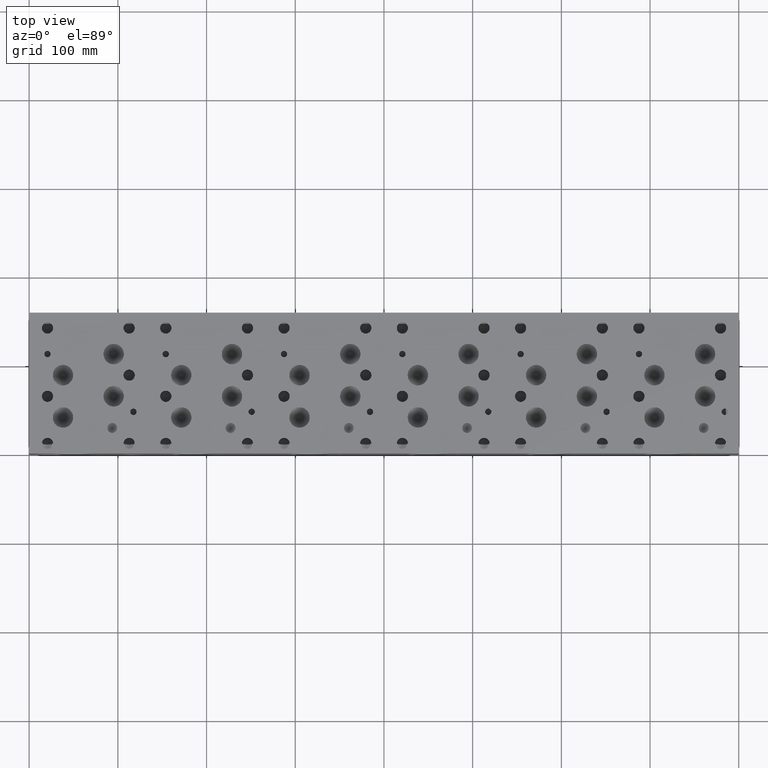
[diagram: clean part render]
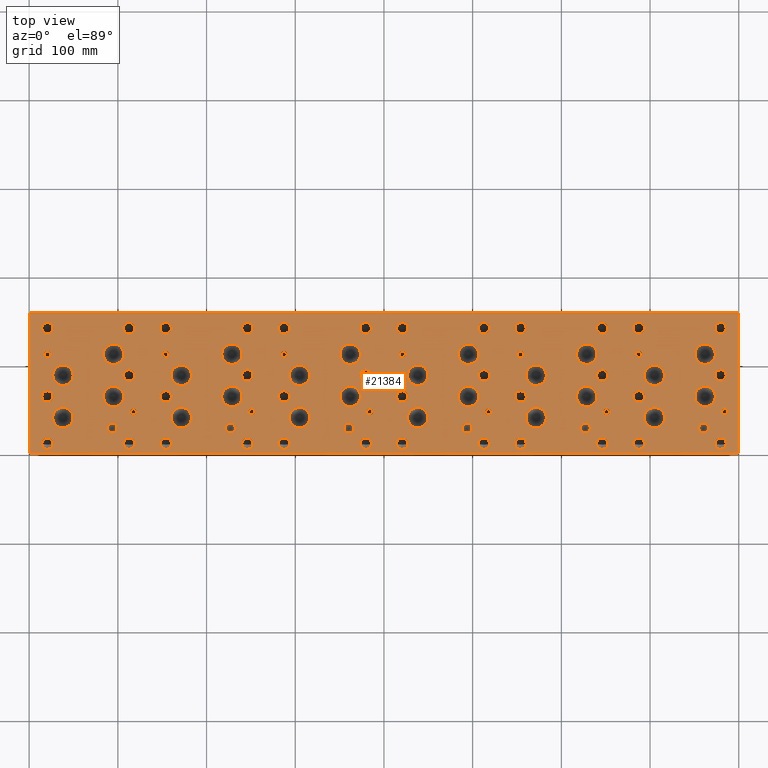
[diagram: same view with one face highlighted and labeled with its STEP entity id]
A machine part, top view. The second image highlights one B-rep face of the part: STEP entity #21384.
In plain terms, the highlighted planar face has unit normal (0, 0, 1).
Its self-contained STEP definition (entity closure, byte-faithful):
#708=CIRCLE('',#21899,5.5626);
#709=CIRCLE('',#21900,5.5626);
#712=CIRCLE('',#21905,5.5626);
#713=CIRCLE('',#21906,5.5626);
#716=CIRCLE('',#21911,5.5626);
#717=CIRCLE('',#21912,5.5626);
#720=CIRCLE('',#21917,5.5626);
#721=CIRCLE('',#21918,5.5626);
#724=CIRCLE('',#21923,5.5626);
#725=CIRCLE('',#21924,5.5626);
#1061=CIRCLE('',#22501,5.55625);
#1062=CIRCLE('',#22502,5.55625);
#1065=CIRCLE('',#22507,11.50874);
#1066=CIRCLE('',#22508,11.50874);
#1069=CIRCLE('',#22513,11.5062);
#1070=CIRCLE('',#22514,11.5062);
#1073=CIRCLE('',#22519,11.5062);
#1074=CIRCLE('',#22520,11.5062);
#1077=CIRCLE('',#22525,11.5062);
#1078=CIRCLE('',#22526,11.5062);
#1081=CIRCLE('',#22531,11.5062);
#1082=CIRCLE('',#22532,11.5062);
#1085=CIRCLE('',#22537,11.5062);
#1086=CIRCLE('',#22538,11.5062);
#1089=CIRCLE('',#22543,11.5062);
#1090=CIRCLE('',#22544,11.5062);
#1093=CIRCLE('',#22549,11.5062);
#1094=CIRCLE('',#22550,11.5062);
#1097=CIRCLE('',#22555,11.5062);
#1098=CIRCLE('',#22556,11.5062);
#1101=CIRCLE('',#22561,11.5062);
#1102=CIRCLE('',#22562,11.5062);
#1105=CIRCLE('',#22567,11.5062);
#1106=CIRCLE('',#22568,11.5062);
#1109=CIRCLE('',#22573,11.5062);
#1110=CIRCLE('',#22574,11.5062);
#1113=CIRCLE('',#22579,11.5062);
#1114=CIRCLE('',#22580,11.5062);
#1117=CIRCLE('',#22585,11.5062);
#1118=CIRCLE('',#22586,11.5062);
#1121=CIRCLE('',#22591,11.5062);
#1122=CIRCLE('',#22592,11.5062);
#1125=CIRCLE('',#22597,11.5062);
#1126=CIRCLE('',#22598,11.5062);
#1129=CIRCLE('',#22603,11.5062);
#1130=CIRCLE('',#22604,11.5062);
#1133=CIRCLE('',#22609,11.5062);
#1134=CIRCLE('',#22610,11.5062);
#1137=CIRCLE('',#22615,11.5062);
#1138=CIRCLE('',#22616,11.5062);
#1141=CIRCLE('',#22621,11.5062);
#1142=CIRCLE('',#22622,11.5062);
#1145=CIRCLE('',#22627,11.5062);
#1146=CIRCLE('',#22628,11.5062);
#1149=CIRCLE('',#22633,11.5062);
#1150=CIRCLE('',#22634,11.5062);
#1153=CIRCLE('',#22639,11.5062);
#1154=CIRCLE('',#22640,11.5062);
#1157=CIRCLE('',#22645,11.5062);
#1158=CIRCLE('',#22646,11.5062);
#1161=CIRCLE('',#22651,3.5687);
#1162=CIRCLE('',#22652,3.5687);
#1165=CIRCLE('',#22657,3.5687);
#1166=CIRCLE('',#22658,3.5687);
#1169=CIRCLE('',#22663,3.5687);
#1170=CIRCLE('',#22664,3.5687);
#1173=CIRCLE('',#22669,3.5687);
#1174=CIRCLE('',#22670,3.5687);
#1177=CIRCLE('',#22675,3.5687);
#1178=CIRCLE('',#22676,3.5687);
#1181=CIRCLE('',#22681,3.5687);
#1182=CIRCLE('',#22682,3.5687);
#1185=CIRCLE('',#22687,3.5687);
#1186=CIRCLE('',#22688,3.5687);
#1189=CIRCLE('',#22693,3.5687);
#1190=CIRCLE('',#22694,3.5687);
#1193=CIRCLE('',#22699,3.5687);
#1194=CIRCLE('',#22700,3.5687);
#1197=CIRCLE('',#22705,3.5687);
#1198=CIRCLE('',#22706,3.5687);
#1201=CIRCLE('',#22711,3.5687);
#1202=CIRCLE('',#22712,3.5687);
#1205=CIRCLE('',#22717,3.5687);
#1206=CIRCLE('',#22718,3.5687);
#1212=CIRCLE('',#22727,6.35);
#1213=CIRCLE('',#22728,6.35);
#1219=CIRCLE('',#22738,6.35);
#1220=CIRCLE('',#22739,6.35);
#1226=CIRCLE('',#22749,6.35);
#1227=CIRCLE('',#22750,6.35);
#1233=CIRCLE('',#22760,6.35);
#1234=CIRCLE('',#22761,6.35);
#1240=CIRCLE('',#22771,6.35);
#1241=CIRCLE('',#22772,6.35);
#1247=CIRCLE('',#22782,6.35);
#1248=CIRCLE('',#22783,6.35);
#1254=CIRCLE('',#22793,6.35);
#1255=CIRCLE('',#22794,6.35);
#1261=CIRCLE('',#22804,6.35);
#1262=CIRCLE('',#22805,6.35);
#1268=CIRCLE('',#22815,6.35);
#1269=CIRCLE('',#22816,6.35);
#1275=CIRCLE('',#22826,6.35);
#1276=CIRCLE('',#22827,6.35);
#1282=CIRCLE('',#22837,6.35);
#1283=CIRCLE('',#22838,6.35);
#1289=CIRCLE('',#22848,6.35);
#1290=CIRCLE('',#22849,6.35);
#1296=CIRCLE('',#22859,6.35);
#1297=CIRCLE('',#22860,6.35);
#1303=CIRCLE('',#22870,6.35);
#1304=CIRCLE('',#22871,6.35);
#1310=CIRCLE('',#22881,6.35);
#1311=CIRCLE('',#22882,6.35);
#1317=CIRCLE('',#22892,6.35);
#1318=CIRCLE('',#22893,6.35);
#1324=CIRCLE('',#22903,6.35);
#1325=CIRCLE('',#22904,6.35);
#1331=CIRCLE('',#22914,6.35);
#1332=CIRCLE('',#22915,6.35);
#1338=CIRCLE('',#22925,6.35);
#1339=CIRCLE('',#22926,6.35);
#1345=CIRCLE('',#22936,6.35);
#1346=CIRCLE('',#22937,6.35);
#1352=CIRCLE('',#22947,6.35);
#1353=CIRCLE('',#22948,6.35);
#1359=CIRCLE('',#22958,6.35);
#1360=CIRCLE('',#22959,6.35);
#1366=CIRCLE('',#22969,6.35);
#1367=CIRCLE('',#22970,6.35);
#1373=CIRCLE('',#22980,6.35);
#1374=CIRCLE('',#22981,6.35);
#1380=CIRCLE('',#22991,6.35);
#1381=CIRCLE('',#22992,6.35);
#1387=CIRCLE('',#23002,6.35);
#1388=CIRCLE('',#23003,6.35);
#1394=CIRCLE('',#23013,6.35);
#1395=CIRCLE('',#23014,6.35);
#1401=CIRCLE('',#23024,6.35);
#1402=CIRCLE('',#23025,6.35);
#1408=CIRCLE('',#23035,6.35);
#1409=CIRCLE('',#23036,6.35);
#1415=CIRCLE('',#23046,6.35);
#1416=CIRCLE('',#23047,6.35);
#1422=CIRCLE('',#23057,6.35);
#1423=CIRCLE('',#23058,6.35);
#1429=CIRCLE('',#23068,6.35);
#1430=CIRCLE('',#23069,6.35);
#1436=CIRCLE('',#23079,6.35);
#1437=CIRCLE('',#23080,6.35);
#1443=CIRCLE('',#23090,6.35);
#1444=CIRCLE('',#23091,6.35);
#1450=CIRCLE('',#23101,6.35);
#1451=CIRCLE('',#23102,6.35);
#1457=CIRCLE('',#23112,6.35);
#1458=CIRCLE('',#23113,6.35);
#2083=FACE_BOUND('',#4598,.T.);
#2084=FACE_BOUND('',#4599,.T.);
#2085=FACE_BOUND('',#4600,.T.);
#2086=FACE_BOUND('',#4601,.T.);
#2087=FACE_BOUND('',#4602,.T.);
#2088=FACE_BOUND('',#4603,.T.);
#2089=FACE_BOUND('',#4604,.T.);
#2090=FACE_BOUND('',#4605,.T.);
#2091=FACE_BOUND('',#4606,.T.);
#2092=FACE_BOUND('',#4607,.T.);
#2093=FACE_BOUND('',#4608,.T.);
#2094=FACE_BOUND('',#4609,.T.);
#2095=FACE_BOUND('',#4610,.T.);
#2096=FACE_BOUND('',#4611,.T.);
#2097=FACE_BOUND('',#4612,.T.);
#2098=FACE_BOUND('',#4613,.T.);
#2099=FACE_BOUND('',#4614,.T.);
#2100=FACE_BOUND('',#4615,.T.);
#2101=FACE_BOUND('',#4616,.T.);
#2102=FACE_BOUND('',#4617,.T.);
#2103=FACE_BOUND('',#4618,.T.);
#2104=FACE_BOUND('',#4619,.T.);
#2105=FACE_BOUND('',#4620,.T.);
#2106=FACE_BOUND('',#4621,.T.);
#2107=FACE_BOUND('',#4622,.T.);
#2108=FACE_BOUND('',#4623,.T.);
#2109=FACE_BOUND('',#4624,.T.);
#2110=FACE_BOUND('',#4625,.T.);
#2111=FACE_BOUND('',#4626,.T.);
#2112=FACE_BOUND('',#4627,.T.);
#2113=FACE_BOUND('',#4628,.T.);
#2114=FACE_BOUND('',#4629,.T.);
#2115=FACE_BOUND('',#4630,.T.);
#2116=FACE_BOUND('',#4631,.T.);
#2117=FACE_BOUND('',#4632,.T.);
#2118=FACE_BOUND('',#4633,.T.);
#2119=FACE_BOUND('',#4634,.T.);
#2120=FACE_BOUND('',#4635,.T.);
#2121=FACE_BOUND('',#4636,.T.);
#2122=FACE_BOUND('',#4637,.T.);
#2123=FACE_BOUND('',#4638,.T.);
#2124=FACE_BOUND('',#4639,.T.);
#2125=FACE_BOUND('',#4640,.T.);
#2126=FACE_BOUND('',#4641,.T.);
#2127=FACE_BOUND('',#4642,.T.);
#2128=FACE_BOUND('',#4643,.T.);
#2129=FACE_BOUND('',#4644,.T.);
#2130=FACE_BOUND('',#4645,.T.);
#2131=FACE_BOUND('',#4646,.T.);
#2132=FACE_BOUND('',#4647,.T.);
#2133=FACE_BOUND('',#4648,.T.);
#2134=FACE_BOUND('',#4649,.T.);
#2135=FACE_BOUND('',#4650,.T.);
#2136=FACE_BOUND('',#4651,.T.);
#2137=FACE_BOUND('',#4652,.T.);
#2138=FACE_BOUND('',#4653,.T.);
#2139=FACE_BOUND('',#4654,.T.);
#2140=FACE_BOUND('',#4655,.T.);
#2141=FACE_BOUND('',#4656,.T.);
#2142=FACE_BOUND('',#4657,.T.);
#2143=FACE_BOUND('',#4658,.T.);
#2144=FACE_BOUND('',#4659,.T.);
#2145=FACE_BOUND('',#4660,.T.);
#2146=FACE_BOUND('',#4661,.T.);
#2147=FACE_BOUND('',#4662,.T.);
#2148=FACE_BOUND('',#4663,.T.);
#2149=FACE_BOUND('',#4664,.T.);
#2150=FACE_BOUND('',#4665,.T.);
#2151=FACE_BOUND('',#4666,.T.);
#2152=FACE_BOUND('',#4667,.T.);
#2153=FACE_BOUND('',#4668,.T.);
#2154=FACE_BOUND('',#4669,.T.);
#2155=FACE_BOUND('',#4670,.T.);
#2156=FACE_BOUND('',#4671,.T.);
#2157=FACE_BOUND('',#4672,.T.);
#2158=FACE_BOUND('',#4673,.T.);
#2159=FACE_BOUND('',#4674,.T.);
#2160=FACE_BOUND('',#4675,.T.);
#3295=FACE_OUTER_BOUND('',#4597,.T.);
#4597=EDGE_LOOP('',(#18959,#18960,#18961,#18962));
#4598=EDGE_LOOP('',(#18963,#18964));
#4599=EDGE_LOOP('',(#18965,#18966));
#4600=EDGE_LOOP('',(#18967,#18968));
#4601=EDGE_LOOP('',(#18969,#18970));
#4602=EDGE_LOOP('',(#18971,#18972));
#4603=EDGE_LOOP('',(#18973,#18974));
#4604=EDGE_LOOP('',(#18975,#18976));
#4605=EDGE_LOOP('',(#18977,#18978));
#4606=EDGE_LOOP('',(#18979,#18980));
#4607=EDGE_LOOP('',(#18981,#18982));
#4608=EDGE_LOOP('',(#18983,#18984));
#4609=EDGE_LOOP('',(#18985,#18986));
#4610=EDGE_LOOP('',(#18987,#18988));
#4611=EDGE_LOOP('',(#18989,#18990));
#4612=EDGE_LOOP('',(#18991,#18992));
#4613=EDGE_LOOP('',(#18993,#18994));
#4614=EDGE_LOOP('',(#18995,#18996));
#4615=EDGE_LOOP('',(#18997,#18998));
#4616=EDGE_LOOP('',(#18999,#19000));
#4617=EDGE_LOOP('',(#19001,#19002));
#4618=EDGE_LOOP('',(#19003,#19004));
#4619=EDGE_LOOP('',(#19005,#19006));
#4620=EDGE_LOOP('',(#19007,#19008));
#4621=EDGE_LOOP('',(#19009,#19010));
#4622=EDGE_LOOP('',(#19011,#19012));
#4623=EDGE_LOOP('',(#19013,#19014));
#4624=EDGE_LOOP('',(#19015,#19016));
#4625=EDGE_LOOP('',(#19017,#19018));
#4626=EDGE_LOOP('',(#19019,#19020));
#4627=EDGE_LOOP('',(#19021,#19022));
#4628=EDGE_LOOP('',(#19023,#19024));
#4629=EDGE_LOOP('',(#19025,#19026));
#4630=EDGE_LOOP('',(#19027,#19028));
#4631=EDGE_LOOP('',(#19029,#19030));
#4632=EDGE_LOOP('',(#19031,#19032));
#4633=EDGE_LOOP('',(#19033,#19034));
#4634=EDGE_LOOP('',(#19035,#19036));
#4635=EDGE_LOOP('',(#19037,#19038));
#4636=EDGE_LOOP('',(#19039,#19040));
#4637=EDGE_LOOP('',(#19041,#19042));
#4638=EDGE_LOOP('',(#19043,#19044));
#4639=EDGE_LOOP('',(#19045,#19046));
#4640=EDGE_LOOP('',(#19047,#19048));
#4641=EDGE_LOOP('',(#19049,#19050));
#4642=EDGE_LOOP('',(#19051,#19052));
#4643=EDGE_LOOP('',(#19053,#19054));
#4644=EDGE_LOOP('',(#19055,#19056));
#4645=EDGE_LOOP('',(#19057,#19058));
#4646=EDGE_LOOP('',(#19059,#19060));
#4647=EDGE_LOOP('',(#19061,#19062));
#4648=EDGE_LOOP('',(#19063,#19064));
#4649=EDGE_LOOP('',(#19065,#19066));
#4650=EDGE_LOOP('',(#19067,#19068));
#4651=EDGE_LOOP('',(#19069,#19070));
#4652=EDGE_LOOP('',(#19071,#19072));
#4653=EDGE_LOOP('',(#19073,#19074));
#4654=EDGE_LOOP('',(#19075,#19076));
#4655=EDGE_LOOP('',(#19077,#19078));
#4656=EDGE_LOOP('',(#19079,#19080));
#4657=EDGE_LOOP('',(#19081,#19082));
#4658=EDGE_LOOP('',(#19083,#19084));
#4659=EDGE_LOOP('',(#19085,#19086));
#4660=EDGE_LOOP('',(#19087,#19088));
#4661=EDGE_LOOP('',(#19089,#19090));
#4662=EDGE_LOOP('',(#19091,#19092));
#4663=EDGE_LOOP('',(#19093,#19094));
#4664=EDGE_LOOP('',(#19095,#19096));
#4665=EDGE_LOOP('',(#19097,#19098));
#4666=EDGE_LOOP('',(#19099,#19100));
#4667=EDGE_LOOP('',(#19101,#19102));
#4668=EDGE_LOOP('',(#19103,#19104));
#4669=EDGE_LOOP('',(#19105,#19106));
#4670=EDGE_LOOP('',(#19107,#19108));
#4671=EDGE_LOOP('',(#19109,#19110));
#4672=EDGE_LOOP('',(#19111,#19112));
#4673=EDGE_LOOP('',(#19113,#19114));
#4674=EDGE_LOOP('',(#19115,#19116));
#4675=EDGE_LOOP('',(#19117,#19118));
#4712=LINE('',#28348,#6420);
#5897=LINE('',#34591,#7605);
#5955=LINE('',#34862,#7663);
#6384=LINE('',#37452,#8092);
#6420=VECTOR('',#23184,10.);
#7605=VECTOR('',#25189,10.);
#7663=VECTOR('',#25301,10.);
#8092=VECTOR('',#28264,10.);
#8117=VERTEX_POINT('',#28345);
#8118=VERTEX_POINT('',#28347);
#9230=VERTEX_POINT('',#34589);
#9288=VERTEX_POINT('',#34861);
#9334=VERTEX_POINT('',#34992);
#9335=VERTEX_POINT('',#34993);
#9339=VERTEX_POINT('',#35005);
#9340=VERTEX_POINT('',#35006);
#9344=VERTEX_POINT('',#35018);
#9345=VERTEX_POINT('',#35019);
#9349=VERTEX_POINT('',#35031);
#9350=VERTEX_POINT('',#35032);
#9354=VERTEX_POINT('',#35044);
#9355=VERTEX_POINT('',#35045);
#9713=VERTEX_POINT('',#36184);
#9714=VERTEX_POINT('',#36185);
#9718=VERTEX_POINT('',#36197);
#9719=VERTEX_POINT('',#36198);
#9723=VERTEX_POINT('',#36210);
#9724=VERTEX_POINT('',#36211);
#9728=VERTEX_POINT('',#36223);
#9729=VERTEX_POINT('',#36224);
#9733=VERTEX_POINT('',#36236);
#9734=VERTEX_POINT('',#36237);
#9738=VERTEX_POINT('',#36249);
#9739=VERTEX_POINT('',#36250);
#9743=VERTEX_POINT('',#36262);
#9744=VERTEX_POINT('',#36263);
#9748=VERTEX_POINT('',#36275);
#9749=VERTEX_POINT('',#36276);
#9753=VERTEX_POINT('',#36288);
#9754=VERTEX_POINT('',#36289);
#9758=VERTEX_POINT('',#36301);
#9759=VERTEX_POINT('',#36302);
#9763=VERTEX_POINT('',#36314);
#9764=VERTEX_POINT('',#36315);
#9768=VERTEX_POINT('',#36327);
#9769=VERTEX_POINT('',#36328);
#9773=VERTEX_POINT('',#36340);
#9774=VERTEX_POINT('',#36341);
#9778=VERTEX_POINT('',#36353);
#9779=VERTEX_POINT('',#36354);
#9783=VERTEX_POINT('',#36366);
#9784=VERTEX_POINT('',#36367);
#9788=VERTEX_POINT('',#36379);
#9789=VERTEX_POINT('',#36380);
#9793=VERTEX_POINT('',#36392);
#9794=VERTEX_POINT('',#36393);
#9798=VERTEX_POINT('',#36405);
#9799=VERTEX_POINT('',#36406);
#9803=VERTEX_POINT('',#36418);
#9804=VERTEX_POINT('',#36419);
#9808=VERTEX_POINT('',#36431);
#9809=VERTEX_POINT('',#36432);
#9813=VERTEX_POINT('',#36444);
#9814=VERTEX_POINT('',#36445);
#9818=VERTEX_POINT('',#36457);
#9819=VERTEX_POINT('',#36458);
#9823=VERTEX_POINT('',#36470);
#9824=VERTEX_POINT('',#36471);
#9828=VERTEX_POINT('',#36483);
#9829=VERTEX_POINT('',#36484);
#9833=VERTEX_POINT('',#36496);
#9834=VERTEX_POINT('',#36497);
#9838=VERTEX_POINT('',#36509);
#9839=VERTEX_POINT('',#36510);
#9843=VERTEX_POINT('',#36522);
#9844=VERTEX_POINT('',#36523);
#9848=VERTEX_POINT('',#36535);
#9849=VERTEX_POINT('',#36536);
#9853=VERTEX_POINT('',#36548);
#9854=VERTEX_POINT('',#36549);
#9858=VERTEX_POINT('',#36561);
#9859=VERTEX_POINT('',#36562);
#9863=VERTEX_POINT('',#36574);
#9864=VERTEX_POINT('',#36575);
#9868=VERTEX_POINT('',#36587);
#9869=VERTEX_POINT('',#36588);
#9873=VERTEX_POINT('',#36600);
#9874=VERTEX_POINT('',#36601);
#9878=VERTEX_POINT('',#36613);
#9879=VERTEX_POINT('',#36614);
#9883=VERTEX_POINT('',#36626);
#9884=VERTEX_POINT('',#36627);
#9888=VERTEX_POINT('',#36639);
#9889=VERTEX_POINT('',#36640);
#9893=VERTEX_POINT('',#36652);
#9894=VERTEX_POINT('',#36653);
#9901=VERTEX_POINT('',#36672);
#9902=VERTEX_POINT('',#36673);
#9909=VERTEX_POINT('',#36694);
#9910=VERTEX_POINT('',#36695);
#9917=VERTEX_POINT('',#36716);
#9918=VERTEX_POINT('',#36717);
#9925=VERTEX_POINT('',#36738);
#9926=VERTEX_POINT('',#36739);
#9933=VERTEX_POINT('',#36760);
#9934=VERTEX_POINT('',#36761);
#9941=VERTEX_POINT('',#36782);
#9942=VERTEX_POINT('',#36783);
#9949=VERTEX_POINT('',#36804);
#9950=VERTEX_POINT('',#36805);
#9957=VERTEX_POINT('',#36826);
#9958=VERTEX_POINT('',#36827);
#9965=VERTEX_POINT('',#36848);
#9966=VERTEX_POINT('',#36849);
#9973=VERTEX_POINT('',#36870);
#9974=VERTEX_POINT('',#36871);
#9981=VERTEX_POINT('',#36892);
#9982=VERTEX_POINT('',#36893);
#9989=VERTEX_POINT('',#36914);
#9990=VERTEX_POINT('',#36915);
#9997=VERTEX_POINT('',#36936);
#9998=VERTEX_POINT('',#36937);
#10005=VERTEX_POINT('',#36958);
#10006=VERTEX_POINT('',#36959);
#10013=VERTEX_POINT('',#36980);
#10014=VERTEX_POINT('',#36981);
#10021=VERTEX_POINT('',#37002);
#10022=VERTEX_POINT('',#37003);
#10029=VERTEX_POINT('',#37024);
#10030=VERTEX_POINT('',#37025);
#10037=VERTEX_POINT('',#37046);
#10038=VERTEX_POINT('',#37047);
#10045=VERTEX_POINT('',#37068);
#10046=VERTEX_POINT('',#37069);
#10053=VERTEX_POINT('',#37090);
#10054=VERTEX_POINT('',#37091);
#10061=VERTEX_POINT('',#37112);
#10062=VERTEX_POINT('',#37113);
#10069=VERTEX_POINT('',#37134);
#10070=VERTEX_POINT('',#37135);
#10077=VERTEX_POINT('',#37156);
#10078=VERTEX_POINT('',#37157);
#10085=VERTEX_POINT('',#37178);
#10086=VERTEX_POINT('',#37179);
#10093=VERTEX_POINT('',#37200);
#10094=VERTEX_POINT('',#37201);
#10101=VERTEX_POINT('',#37222);
#10102=VERTEX_POINT('',#37223);
#10109=VERTEX_POINT('',#37244);
#10110=VERTEX_POINT('',#37245);
#10117=VERTEX_POINT('',#37266);
#10118=VERTEX_POINT('',#37267);
#10125=VERTEX_POINT('',#37288);
#10126=VERTEX_POINT('',#37289);
#10133=VERTEX_POINT('',#37310);
#10134=VERTEX_POINT('',#37311);
#10141=VERTEX_POINT('',#37332);
#10142=VERTEX_POINT('',#37333);
#10149=VERTEX_POINT('',#37354);
#10150=VERTEX_POINT('',#37355);
#10157=VERTEX_POINT('',#37376);
#10158=VERTEX_POINT('',#37377);
#10165=VERTEX_POINT('',#37398);
#10166=VERTEX_POINT('',#37399);
#10173=VERTEX_POINT('',#37420);
#10174=VERTEX_POINT('',#37421);
#10181=VERTEX_POINT('',#37442);
#10182=VERTEX_POINT('',#37443);
#10218=EDGE_CURVE('',#8118,#8117,#4712,.T.);
#11873=EDGE_CURVE('',#8117,#9230,#5897,.T.);
#11955=EDGE_CURVE('',#9288,#8118,#5955,.T.);
#12018=EDGE_CURVE('',#9334,#9335,#708,.T.);
#12019=EDGE_CURVE('',#9335,#9334,#709,.T.);
#12024=EDGE_CURVE('',#9339,#9340,#712,.T.);
#12025=EDGE_CURVE('',#9340,#9339,#713,.T.);
#12030=EDGE_CURVE('',#9344,#9345,#716,.T.);
#12031=EDGE_CURVE('',#9345,#9344,#717,.T.);
#12036=EDGE_CURVE('',#9349,#9350,#720,.T.);
#12037=EDGE_CURVE('',#9350,#9349,#721,.T.);
#12042=EDGE_CURVE('',#9354,#9355,#724,.T.);
#12043=EDGE_CURVE('',#9355,#9354,#725,.T.);
#12582=EDGE_CURVE('',#9713,#9714,#1061,.T.);
#12583=EDGE_CURVE('',#9714,#9713,#1062,.T.);
#12588=EDGE_CURVE('',#9718,#9719,#1065,.T.);
#12589=EDGE_CURVE('',#9719,#9718,#1066,.T.);
#12594=EDGE_CURVE('',#9723,#9724,#1069,.T.);
#12595=EDGE_CURVE('',#9724,#9723,#1070,.T.);
#12600=EDGE_CURVE('',#9728,#9729,#1073,.T.);
#12601=EDGE_CURVE('',#9729,#9728,#1074,.T.);
#12606=EDGE_CURVE('',#9733,#9734,#1077,.T.);
#12607=EDGE_CURVE('',#9734,#9733,#1078,.T.);
#12612=EDGE_CURVE('',#9738,#9739,#1081,.T.);
#12613=EDGE_CURVE('',#9739,#9738,#1082,.T.);
#12618=EDGE_CURVE('',#9743,#9744,#1085,.T.);
#12619=EDGE_CURVE('',#9744,#9743,#1086,.T.);
#12624=EDGE_CURVE('',#9748,#9749,#1089,.T.);
#12625=EDGE_CURVE('',#9749,#9748,#1090,.T.);
#12630=EDGE_CURVE('',#9753,#9754,#1093,.T.);
#12631=EDGE_CURVE('',#9754,#9753,#1094,.T.);
#12636=EDGE_CURVE('',#9758,#9759,#1097,.T.);
#12637=EDGE_CURVE('',#9759,#9758,#1098,.T.);
#12642=EDGE_CURVE('',#9763,#9764,#1101,.T.);
#12643=EDGE_CURVE('',#9764,#9763,#1102,.T.);
#12648=EDGE_CURVE('',#9768,#9769,#1105,.T.);
#12649=EDGE_CURVE('',#9769,#9768,#1106,.T.);
#12654=EDGE_CURVE('',#9773,#9774,#1109,.T.);
#12655=EDGE_CURVE('',#9774,#9773,#1110,.T.);
#12660=EDGE_CURVE('',#9778,#9779,#1113,.T.);
#12661=EDGE_CURVE('',#9779,#9778,#1114,.T.);
#12666=EDGE_CURVE('',#9783,#9784,#1117,.T.);
#12667=EDGE_CURVE('',#9784,#9783,#1118,.T.);
#12672=EDGE_CURVE('',#9788,#9789,#1121,.T.);
#12673=EDGE_CURVE('',#9789,#9788,#1122,.T.);
#12678=EDGE_CURVE('',#9793,#9794,#1125,.T.);
#12679=EDGE_CURVE('',#9794,#9793,#1126,.T.);
#12684=EDGE_CURVE('',#9798,#9799,#1129,.T.);
#12685=EDGE_CURVE('',#9799,#9798,#1130,.T.);
#12690=EDGE_CURVE('',#9803,#9804,#1133,.T.);
#12691=EDGE_CURVE('',#9804,#9803,#1134,.T.);
#12696=EDGE_CURVE('',#9808,#9809,#1137,.T.);
#12697=EDGE_CURVE('',#9809,#9808,#1138,.T.);
#12702=EDGE_CURVE('',#9813,#9814,#1141,.T.);
#12703=EDGE_CURVE('',#9814,#9813,#1142,.T.);
#12708=EDGE_CURVE('',#9818,#9819,#1145,.T.);
#12709=EDGE_CURVE('',#9819,#9818,#1146,.T.);
#12714=EDGE_CURVE('',#9823,#9824,#1149,.T.);
#12715=EDGE_CURVE('',#9824,#9823,#1150,.T.);
#12720=EDGE_CURVE('',#9828,#9829,#1153,.T.);
#12721=EDGE_CURVE('',#9829,#9828,#1154,.T.);
#12726=EDGE_CURVE('',#9833,#9834,#1157,.T.);
#12727=EDGE_CURVE('',#9834,#9833,#1158,.T.);
#12732=EDGE_CURVE('',#9838,#9839,#1161,.T.);
#12733=EDGE_CURVE('',#9839,#9838,#1162,.T.);
#12738=EDGE_CURVE('',#9843,#9844,#1165,.T.);
#12739=EDGE_CURVE('',#9844,#9843,#1166,.T.);
#12744=EDGE_CURVE('',#9848,#9849,#1169,.T.);
#12745=EDGE_CURVE('',#9849,#9848,#1170,.T.);
#12750=EDGE_CURVE('',#9853,#9854,#1173,.T.);
#12751=EDGE_CURVE('',#9854,#9853,#1174,.T.);
#12756=EDGE_CURVE('',#9858,#9859,#1177,.T.);
#12757=EDGE_CURVE('',#9859,#9858,#1178,.T.);
#12762=EDGE_CURVE('',#9863,#9864,#1181,.T.);
#12763=EDGE_CURVE('',#9864,#9863,#1182,.T.);
#12768=EDGE_CURVE('',#9868,#9869,#1185,.T.);
#12769=EDGE_CURVE('',#9869,#9868,#1186,.T.);
#12774=EDGE_CURVE('',#9873,#9874,#1189,.T.);
#12775=EDGE_CURVE('',#9874,#9873,#1190,.T.);
#12780=EDGE_CURVE('',#9878,#9879,#1193,.T.);
#12781=EDGE_CURVE('',#9879,#9878,#1194,.T.);
#12786=EDGE_CURVE('',#9883,#9884,#1197,.T.);
#12787=EDGE_CURVE('',#9884,#9883,#1198,.T.);
#12792=EDGE_CURVE('',#9888,#9889,#1201,.T.);
#12793=EDGE_CURVE('',#9889,#9888,#1202,.T.);
#12798=EDGE_CURVE('',#9893,#9894,#1205,.T.);
#12799=EDGE_CURVE('',#9894,#9893,#1206,.T.);
#12807=EDGE_CURVE('',#9901,#9902,#1212,.T.);
#12808=EDGE_CURVE('',#9902,#9901,#1213,.T.);
#12817=EDGE_CURVE('',#9909,#9910,#1219,.T.);
#12818=EDGE_CURVE('',#9910,#9909,#1220,.T.);
#12827=EDGE_CURVE('',#9917,#9918,#1226,.T.);
#12828=EDGE_CURVE('',#9918,#9917,#1227,.T.);
#12837=EDGE_CURVE('',#9925,#9926,#1233,.T.);
#12838=EDGE_CURVE('',#9926,#9925,#1234,.T.);
#12847=EDGE_CURVE('',#9933,#9934,#1240,.T.);
#12848=EDGE_CURVE('',#9934,#9933,#1241,.T.);
#12857=EDGE_CURVE('',#9941,#9942,#1247,.T.);
#12858=EDGE_CURVE('',#9942,#9941,#1248,.T.);
#12867=EDGE_CURVE('',#9949,#9950,#1254,.T.);
#12868=EDGE_CURVE('',#9950,#9949,#1255,.T.);
#12877=EDGE_CURVE('',#9957,#9958,#1261,.T.);
#12878=EDGE_CURVE('',#9958,#9957,#1262,.T.);
#12887=EDGE_CURVE('',#9965,#9966,#1268,.T.);
#12888=EDGE_CURVE('',#9966,#9965,#1269,.T.);
#12897=EDGE_CURVE('',#9973,#9974,#1275,.T.);
#12898=EDGE_CURVE('',#9974,#9973,#1276,.T.);
#12907=EDGE_CURVE('',#9981,#9982,#1282,.T.);
#12908=EDGE_CURVE('',#9982,#9981,#1283,.T.);
#12917=EDGE_CURVE('',#9989,#9990,#1289,.T.);
#12918=EDGE_CURVE('',#9990,#9989,#1290,.T.);
#12927=EDGE_CURVE('',#9997,#9998,#1296,.T.);
#12928=EDGE_CURVE('',#9998,#9997,#1297,.T.);
#12937=EDGE_CURVE('',#10005,#10006,#1303,.T.);
#12938=EDGE_CURVE('',#10006,#10005,#1304,.T.);
#12947=EDGE_CURVE('',#10013,#10014,#1310,.T.);
#12948=EDGE_CURVE('',#10014,#10013,#1311,.T.);
#12957=EDGE_CURVE('',#10021,#10022,#1317,.T.);
#12958=EDGE_CURVE('',#10022,#10021,#1318,.T.);
#12967=EDGE_CURVE('',#10029,#10030,#1324,.T.);
#12968=EDGE_CURVE('',#10030,#10029,#1325,.T.);
#12977=EDGE_CURVE('',#10037,#10038,#1331,.T.);
#12978=EDGE_CURVE('',#10038,#10037,#1332,.T.);
#12987=EDGE_CURVE('',#10045,#10046,#1338,.T.);
#12988=EDGE_CURVE('',#10046,#10045,#1339,.T.);
#12997=EDGE_CURVE('',#10053,#10054,#1345,.T.);
#12998=EDGE_CURVE('',#10054,#10053,#1346,.T.);
#13007=EDGE_CURVE('',#10061,#10062,#1352,.T.);
#13008=EDGE_CURVE('',#10062,#10061,#1353,.T.);
#13017=EDGE_CURVE('',#10069,#10070,#1359,.T.);
#13018=EDGE_CURVE('',#10070,#10069,#1360,.T.);
#13027=EDGE_CURVE('',#10077,#10078,#1366,.T.);
#13028=EDGE_CURVE('',#10078,#10077,#1367,.T.);
#13037=EDGE_CURVE('',#10085,#10086,#1373,.T.);
#13038=EDGE_CURVE('',#10086,#10085,#1374,.T.);
#13047=EDGE_CURVE('',#10093,#10094,#1380,.T.);
#13048=EDGE_CURVE('',#10094,#10093,#1381,.T.);
#13057=EDGE_CURVE('',#10101,#10102,#1387,.T.);
#13058=EDGE_CURVE('',#10102,#10101,#1388,.T.);
#13067=EDGE_CURVE('',#10109,#10110,#1394,.T.);
#13068=EDGE_CURVE('',#10110,#10109,#1395,.T.);
#13077=EDGE_CURVE('',#10117,#10118,#1401,.T.);
#13078=EDGE_CURVE('',#10118,#10117,#1402,.T.);
#13087=EDGE_CURVE('',#10125,#10126,#1408,.T.);
#13088=EDGE_CURVE('',#10126,#10125,#1409,.T.);
#13097=EDGE_CURVE('',#10133,#10134,#1415,.T.);
#13098=EDGE_CURVE('',#10134,#10133,#1416,.T.);
#13107=EDGE_CURVE('',#10141,#10142,#1422,.T.);
#13108=EDGE_CURVE('',#10142,#10141,#1423,.T.);
#13117=EDGE_CURVE('',#10149,#10150,#1429,.T.);
#13118=EDGE_CURVE('',#10150,#10149,#1430,.T.);
#13127=EDGE_CURVE('',#10157,#10158,#1436,.T.);
#13128=EDGE_CURVE('',#10158,#10157,#1437,.T.);
#13137=EDGE_CURVE('',#10165,#10166,#1443,.T.);
#13138=EDGE_CURVE('',#10166,#10165,#1444,.T.);
#13147=EDGE_CURVE('',#10173,#10174,#1450,.T.);
#13148=EDGE_CURVE('',#10174,#10173,#1451,.T.);
#13157=EDGE_CURVE('',#10181,#10182,#1457,.T.);
#13158=EDGE_CURVE('',#10182,#10181,#1458,.T.);
#13162=EDGE_CURVE('',#9230,#9288,#6384,.T.);
#18959=ORIENTED_EDGE('',*,*,#10218,.T.);
#18960=ORIENTED_EDGE('',*,*,#11873,.T.);
#18961=ORIENTED_EDGE('',*,*,#13162,.T.);
#18962=ORIENTED_EDGE('',*,*,#11955,.T.);
#18963=ORIENTED_EDGE('',*,*,#12018,.T.);
#18964=ORIENTED_EDGE('',*,*,#12019,.T.);
#18965=ORIENTED_EDGE('',*,*,#12024,.T.);
#18966=ORIENTED_EDGE('',*,*,#12025,.T.);
#18967=ORIENTED_EDGE('',*,*,#12030,.T.);
#18968=ORIENTED_EDGE('',*,*,#12031,.T.);
#18969=ORIENTED_EDGE('',*,*,#12036,.T.);
#18970=ORIENTED_EDGE('',*,*,#12037,.T.);
#18971=ORIENTED_EDGE('',*,*,#12042,.T.);
#18972=ORIENTED_EDGE('',*,*,#12043,.T.);
#18973=ORIENTED_EDGE('',*,*,#12582,.T.);
#18974=ORIENTED_EDGE('',*,*,#12583,.T.);
#18975=ORIENTED_EDGE('',*,*,#12588,.T.);
#18976=ORIENTED_EDGE('',*,*,#12589,.T.);
#18977=ORIENTED_EDGE('',*,*,#12594,.T.);
#18978=ORIENTED_EDGE('',*,*,#12595,.T.);
#18979=ORIENTED_EDGE('',*,*,#12600,.T.);
#18980=ORIENTED_EDGE('',*,*,#12601,.T.);
#18981=ORIENTED_EDGE('',*,*,#12606,.T.);
#18982=ORIENTED_EDGE('',*,*,#12607,.T.);
#18983=ORIENTED_EDGE('',*,*,#12612,.T.);
#18984=ORIENTED_EDGE('',*,*,#12613,.T.);
#18985=ORIENTED_EDGE('',*,*,#12618,.T.);
#18986=ORIENTED_EDGE('',*,*,#12619,.T.);
#18987=ORIENTED_EDGE('',*,*,#12624,.T.);
#18988=ORIENTED_EDGE('',*,*,#12625,.T.);
#18989=ORIENTED_EDGE('',*,*,#12630,.T.);
#18990=ORIENTED_EDGE('',*,*,#12631,.T.);
#18991=ORIENTED_EDGE('',*,*,#12636,.T.);
#18992=ORIENTED_EDGE('',*,*,#12637,.T.);
#18993=ORIENTED_EDGE('',*,*,#12642,.T.);
#18994=ORIENTED_EDGE('',*,*,#12643,.T.);
#18995=ORIENTED_EDGE('',*,*,#12648,.T.);
#18996=ORIENTED_EDGE('',*,*,#12649,.T.);
#18997=ORIENTED_EDGE('',*,*,#12654,.T.);
#18998=ORIENTED_EDGE('',*,*,#12655,.T.);
#18999=ORIENTED_EDGE('',*,*,#12660,.T.);
#19000=ORIENTED_EDGE('',*,*,#12661,.T.);
#19001=ORIENTED_EDGE('',*,*,#12666,.T.);
#19002=ORIENTED_EDGE('',*,*,#12667,.T.);
#19003=ORIENTED_EDGE('',*,*,#12672,.T.);
#19004=ORIENTED_EDGE('',*,*,#12673,.T.);
#19005=ORIENTED_EDGE('',*,*,#12678,.T.);
#19006=ORIENTED_EDGE('',*,*,#12679,.T.);
#19007=ORIENTED_EDGE('',*,*,#12684,.T.);
#19008=ORIENTED_EDGE('',*,*,#12685,.T.);
#19009=ORIENTED_EDGE('',*,*,#12690,.T.);
#19010=ORIENTED_EDGE('',*,*,#12691,.T.);
#19011=ORIENTED_EDGE('',*,*,#12696,.T.);
#19012=ORIENTED_EDGE('',*,*,#12697,.T.);
#19013=ORIENTED_EDGE('',*,*,#12702,.T.);
#19014=ORIENTED_EDGE('',*,*,#12703,.T.);
#19015=ORIENTED_EDGE('',*,*,#12708,.T.);
#19016=ORIENTED_EDGE('',*,*,#12709,.T.);
#19017=ORIENTED_EDGE('',*,*,#12714,.T.);
#19018=ORIENTED_EDGE('',*,*,#12715,.T.);
#19019=ORIENTED_EDGE('',*,*,#12720,.T.);
#19020=ORIENTED_EDGE('',*,*,#12721,.T.);
#19021=ORIENTED_EDGE('',*,*,#12726,.T.);
#19022=ORIENTED_EDGE('',*,*,#12727,.T.);
#19023=ORIENTED_EDGE('',*,*,#12732,.T.);
#19024=ORIENTED_EDGE('',*,*,#12733,.T.);
#19025=ORIENTED_EDGE('',*,*,#12738,.T.);
#19026=ORIENTED_EDGE('',*,*,#12739,.T.);
#19027=ORIENTED_EDGE('',*,*,#12744,.T.);
#19028=ORIENTED_EDGE('',*,*,#12745,.T.);
#19029=ORIENTED_EDGE('',*,*,#12750,.T.);
#19030=ORIENTED_EDGE('',*,*,#12751,.T.);
#19031=ORIENTED_EDGE('',*,*,#12756,.T.);
#19032=ORIENTED_EDGE('',*,*,#12757,.T.);
#19033=ORIENTED_EDGE('',*,*,#12762,.T.);
#19034=ORIENTED_EDGE('',*,*,#12763,.T.);
#19035=ORIENTED_EDGE('',*,*,#12768,.T.);
#19036=ORIENTED_EDGE('',*,*,#12769,.T.);
#19037=ORIENTED_EDGE('',*,*,#12774,.T.);
#19038=ORIENTED_EDGE('',*,*,#12775,.T.);
#19039=ORIENTED_EDGE('',*,*,#12780,.T.);
#19040=ORIENTED_EDGE('',*,*,#12781,.T.);
#19041=ORIENTED_EDGE('',*,*,#12786,.T.);
#19042=ORIENTED_EDGE('',*,*,#12787,.T.);
#19043=ORIENTED_EDGE('',*,*,#12792,.T.);
#19044=ORIENTED_EDGE('',*,*,#12793,.T.);
#19045=ORIENTED_EDGE('',*,*,#12798,.T.);
#19046=ORIENTED_EDGE('',*,*,#12799,.T.);
#19047=ORIENTED_EDGE('',*,*,#12807,.T.);
#19048=ORIENTED_EDGE('',*,*,#12808,.T.);
#19049=ORIENTED_EDGE('',*,*,#12817,.T.);
#19050=ORIENTED_EDGE('',*,*,#12818,.T.);
#19051=ORIENTED_EDGE('',*,*,#12827,.T.);
#19052=ORIENTED_EDGE('',*,*,#12828,.T.);
#19053=ORIENTED_EDGE('',*,*,#12837,.T.);
#19054=ORIENTED_EDGE('',*,*,#12838,.T.);
#19055=ORIENTED_EDGE('',*,*,#12847,.T.);
#19056=ORIENTED_EDGE('',*,*,#12848,.T.);
#19057=ORIENTED_EDGE('',*,*,#12857,.T.);
#19058=ORIENTED_EDGE('',*,*,#12858,.T.);
#19059=ORIENTED_EDGE('',*,*,#12867,.T.);
#19060=ORIENTED_EDGE('',*,*,#12868,.T.);
#19061=ORIENTED_EDGE('',*,*,#12877,.T.);
#19062=ORIENTED_EDGE('',*,*,#12878,.T.);
#19063=ORIENTED_EDGE('',*,*,#12887,.T.);
#19064=ORIENTED_EDGE('',*,*,#12888,.T.);
#19065=ORIENTED_EDGE('',*,*,#12897,.T.);
#19066=ORIENTED_EDGE('',*,*,#12898,.T.);
#19067=ORIENTED_EDGE('',*,*,#12907,.T.);
#19068=ORIENTED_EDGE('',*,*,#12908,.T.);
#19069=ORIENTED_EDGE('',*,*,#12917,.T.);
#19070=ORIENTED_EDGE('',*,*,#12918,.T.);
#19071=ORIENTED_EDGE('',*,*,#12927,.T.);
#19072=ORIENTED_EDGE('',*,*,#12928,.T.);
#19073=ORIENTED_EDGE('',*,*,#12937,.T.);
#19074=ORIENTED_EDGE('',*,*,#12938,.T.);
#19075=ORIENTED_EDGE('',*,*,#12947,.T.);
#19076=ORIENTED_EDGE('',*,*,#12948,.T.);
#19077=ORIENTED_EDGE('',*,*,#12957,.T.);
#19078=ORIENTED_EDGE('',*,*,#12958,.T.);
#19079=ORIENTED_EDGE('',*,*,#12967,.T.);
#19080=ORIENTED_EDGE('',*,*,#12968,.T.);
#19081=ORIENTED_EDGE('',*,*,#12977,.T.);
#19082=ORIENTED_EDGE('',*,*,#12978,.T.);
#19083=ORIENTED_EDGE('',*,*,#12987,.T.);
#19084=ORIENTED_EDGE('',*,*,#12988,.T.);
#19085=ORIENTED_EDGE('',*,*,#12997,.T.);
#19086=ORIENTED_EDGE('',*,*,#12998,.T.);
#19087=ORIENTED_EDGE('',*,*,#13007,.T.);
#19088=ORIENTED_EDGE('',*,*,#13008,.T.);
#19089=ORIENTED_EDGE('',*,*,#13017,.T.);
#19090=ORIENTED_EDGE('',*,*,#13018,.T.);
#19091=ORIENTED_EDGE('',*,*,#13027,.T.);
#19092=ORIENTED_EDGE('',*,*,#13028,.T.);
#19093=ORIENTED_EDGE('',*,*,#13037,.T.);
#19094=ORIENTED_EDGE('',*,*,#13038,.T.);
#19095=ORIENTED_EDGE('',*,*,#13047,.T.);
#19096=ORIENTED_EDGE('',*,*,#13048,.T.);
#19097=ORIENTED_EDGE('',*,*,#13057,.T.);
#19098=ORIENTED_EDGE('',*,*,#13058,.T.);
#19099=ORIENTED_EDGE('',*,*,#13067,.T.);
#19100=ORIENTED_EDGE('',*,*,#13068,.T.);
#19101=ORIENTED_EDGE('',*,*,#13077,.T.);
#19102=ORIENTED_EDGE('',*,*,#13078,.T.);
#19103=ORIENTED_EDGE('',*,*,#13087,.T.);
#19104=ORIENTED_EDGE('',*,*,#13088,.T.);
#19105=ORIENTED_EDGE('',*,*,#13097,.T.);
#19106=ORIENTED_EDGE('',*,*,#13098,.T.);
#19107=ORIENTED_EDGE('',*,*,#13107,.T.);
#19108=ORIENTED_EDGE('',*,*,#13108,.T.);
#19109=ORIENTED_EDGE('',*,*,#13117,.T.);
#19110=ORIENTED_EDGE('',*,*,#13118,.T.);
#19111=ORIENTED_EDGE('',*,*,#13127,.T.);
#19112=ORIENTED_EDGE('',*,*,#13128,.T.);
#19113=ORIENTED_EDGE('',*,*,#13137,.T.);
#19114=ORIENTED_EDGE('',*,*,#13138,.T.);
#19115=ORIENTED_EDGE('',*,*,#13147,.T.);
#19116=ORIENTED_EDGE('',*,*,#13148,.T.);
#19117=ORIENTED_EDGE('',*,*,#13157,.T.);
#19118=ORIENTED_EDGE('',*,*,#13158,.T.);
#19626=PLANE('',#23119);
#21384=ADVANCED_FACE('',(#3295,#2083,#2084,#2085,#2086,#2087,#2088,#2089,
#2090,#2091,#2092,#2093,#2094,#2095,#2096,#2097,#2098,#2099,#2100,#2101,
#2102,#2103,#2104,#2105,#2106,#2107,#2108,#2109,#2110,#2111,#2112,#2113,
#2114,#2115,#2116,#2117,#2118,#2119,#2120,#2121,#2122,#2123,#2124,#2125,
#2126,#2127,#2128,#2129,#2130,#2131,#2132,#2133,#2134,#2135,#2136,#2137,
#2138,#2139,#2140,#2141,#2142,#2143,#2144,#2145,#2146,#2147,#2148,#2149,
#2150,#2151,#2152,#2153,#2154,#2155,#2156,#2157,#2158,#2159,#2160),#19626,
 .T.);
#21899=AXIS2_PLACEMENT_3D('',#34994,#25435,#25436);
#21900=AXIS2_PLACEMENT_3D('',#34995,#25437,#25438);
#21905=AXIS2_PLACEMENT_3D('',#35007,#25449,#25450);
#21906=AXIS2_PLACEMENT_3D('',#35008,#25451,#25452);
#21911=AXIS2_PLACEMENT_3D('',#35020,#25463,#25464);
#21912=AXIS2_PLACEMENT_3D('',#35021,#25465,#25466);
#21917=AXIS2_PLACEMENT_3D('',#35033,#25477,#25478);
#21918=AXIS2_PLACEMENT_3D('',#35034,#25479,#25480);
#21923=AXIS2_PLACEMENT_3D('',#35046,#25491,#25492);
#21924=AXIS2_PLACEMENT_3D('',#35047,#25493,#25494);
#22501=AXIS2_PLACEMENT_3D('',#36186,#26850,#26851);
#22502=AXIS2_PLACEMENT_3D('',#36187,#26852,#26853);
#22507=AXIS2_PLACEMENT_3D('',#36199,#26864,#26865);
#22508=AXIS2_PLACEMENT_3D('',#36200,#26866,#26867);
#22513=AXIS2_PLACEMENT_3D('',#36212,#26878,#26879);
#22514=AXIS2_PLACEMENT_3D('',#36213,#26880,#26881);
#22519=AXIS2_PLACEMENT_3D('',#36225,#26892,#26893);
#22520=AXIS2_PLACEMENT_3D('',#36226,#26894,#26895);
#22525=AXIS2_PLACEMENT_3D('',#36238,#26906,#26907);
#22526=AXIS2_PLACEMENT_3D('',#36239,#26908,#26909);
#22531=AXIS2_PLACEMENT_3D('',#36251,#26920,#26921);
#22532=AXIS2_PLACEMENT_3D('',#36252,#26922,#26923);
#22537=AXIS2_PLACEMENT_3D('',#36264,#26934,#26935);
#22538=AXIS2_PLACEMENT_3D('',#36265,#26936,#26937);
#22543=AXIS2_PLACEMENT_3D('',#36277,#26948,#26949);
#22544=AXIS2_PLACEMENT_3D('',#36278,#26950,#26951);
#22549=AXIS2_PLACEMENT_3D('',#36290,#26962,#26963);
#22550=AXIS2_PLACEMENT_3D('',#36291,#26964,#26965);
#22555=AXIS2_PLACEMENT_3D('',#36303,#26976,#26977);
#22556=AXIS2_PLACEMENT_3D('',#36304,#26978,#26979);
#22561=AXIS2_PLACEMENT_3D('',#36316,#26990,#26991);
#22562=AXIS2_PLACEMENT_3D('',#36317,#26992,#26993);
#22567=AXIS2_PLACEMENT_3D('',#36329,#27004,#27005);
#22568=AXIS2_PLACEMENT_3D('',#36330,#27006,#27007);
#22573=AXIS2_PLACEMENT_3D('',#36342,#27018,#27019);
#22574=AXIS2_PLACEMENT_3D('',#36343,#27020,#27021);
#22579=AXIS2_PLACEMENT_3D('',#36355,#27032,#27033);
#22580=AXIS2_PLACEMENT_3D('',#36356,#27034,#27035);
#22585=AXIS2_PLACEMENT_3D('',#36368,#27046,#27047);
#22586=AXIS2_PLACEMENT_3D('',#36369,#27048,#27049);
#22591=AXIS2_PLACEMENT_3D('',#36381,#27060,#27061);
#22592=AXIS2_PLACEMENT_3D('',#36382,#27062,#27063);
#22597=AXIS2_PLACEMENT_3D('',#36394,#27074,#27075);
#22598=AXIS2_PLACEMENT_3D('',#36395,#27076,#27077);
#22603=AXIS2_PLACEMENT_3D('',#36407,#27088,#27089);
#22604=AXIS2_PLACEMENT_3D('',#36408,#27090,#27091);
#22609=AXIS2_PLACEMENT_3D('',#36420,#27102,#27103);
#22610=AXIS2_PLACEMENT_3D('',#36421,#27104,#27105);
#22615=AXIS2_PLACEMENT_3D('',#36433,#27116,#27117);
#22616=AXIS2_PLACEMENT_3D('',#36434,#27118,#27119);
#22621=AXIS2_PLACEMENT_3D('',#36446,#27130,#27131);
#22622=AXIS2_PLACEMENT_3D('',#36447,#27132,#27133);
#22627=AXIS2_PLACEMENT_3D('',#36459,#27144,#27145);
#22628=AXIS2_PLACEMENT_3D('',#36460,#27146,#27147);
#22633=AXIS2_PLACEMENT_3D('',#36472,#27158,#27159);
#22634=AXIS2_PLACEMENT_3D('',#36473,#27160,#27161);
#22639=AXIS2_PLACEMENT_3D('',#36485,#27172,#27173);
#22640=AXIS2_PLACEMENT_3D('',#36486,#27174,#27175);
#22645=AXIS2_PLACEMENT_3D('',#36498,#27186,#27187);
#22646=AXIS2_PLACEMENT_3D('',#36499,#27188,#27189);
#22651=AXIS2_PLACEMENT_3D('',#36511,#27200,#27201);
#22652=AXIS2_PLACEMENT_3D('',#36512,#27202,#27203);
#22657=AXIS2_PLACEMENT_3D('',#36524,#27214,#27215);
#22658=AXIS2_PLACEMENT_3D('',#36525,#27216,#27217);
#22663=AXIS2_PLACEMENT_3D('',#36537,#27228,#27229);
#22664=AXIS2_PLACEMENT_3D('',#36538,#27230,#27231);
#22669=AXIS2_PLACEMENT_3D('',#36550,#27242,#27243);
#22670=AXIS2_PLACEMENT_3D('',#36551,#27244,#27245);
#22675=AXIS2_PLACEMENT_3D('',#36563,#27256,#27257);
#22676=AXIS2_PLACEMENT_3D('',#36564,#27258,#27259);
#22681=AXIS2_PLACEMENT_3D('',#36576,#27270,#27271);
#22682=AXIS2_PLACEMENT_3D('',#36577,#27272,#27273);
#22687=AXIS2_PLACEMENT_3D('',#36589,#27284,#27285);
#22688=AXIS2_PLACEMENT_3D('',#36590,#27286,#27287);
#22693=AXIS2_PLACEMENT_3D('',#36602,#27298,#27299);
#22694=AXIS2_PLACEMENT_3D('',#36603,#27300,#27301);
#22699=AXIS2_PLACEMENT_3D('',#36615,#27312,#27313);
#22700=AXIS2_PLACEMENT_3D('',#36616,#27314,#27315);
#22705=AXIS2_PLACEMENT_3D('',#36628,#27326,#27327);
#22706=AXIS2_PLACEMENT_3D('',#36629,#27328,#27329);
#22711=AXIS2_PLACEMENT_3D('',#36641,#27340,#27341);
#22712=AXIS2_PLACEMENT_3D('',#36642,#27342,#27343);
#22717=AXIS2_PLACEMENT_3D('',#36654,#27354,#27355);
#22718=AXIS2_PLACEMENT_3D('',#36655,#27356,#27357);
#22727=AXIS2_PLACEMENT_3D('',#36674,#27376,#27377);
#22728=AXIS2_PLACEMENT_3D('',#36675,#27378,#27379);
#22738=AXIS2_PLACEMENT_3D('',#36696,#27401,#27402);
#22739=AXIS2_PLACEMENT_3D('',#36697,#27403,#27404);
#22749=AXIS2_PLACEMENT_3D('',#36718,#27426,#27427);
#22750=AXIS2_PLACEMENT_3D('',#36719,#27428,#27429);
#22760=AXIS2_PLACEMENT_3D('',#36740,#27451,#27452);
#22761=AXIS2_PLACEMENT_3D('',#36741,#27453,#27454);
#22771=AXIS2_PLACEMENT_3D('',#36762,#27476,#27477);
#22772=AXIS2_PLACEMENT_3D('',#36763,#27478,#27479);
#22782=AXIS2_PLACEMENT_3D('',#36784,#27501,#27502);
#22783=AXIS2_PLACEMENT_3D('',#36785,#27503,#27504);
#22793=AXIS2_PLACEMENT_3D('',#36806,#27526,#27527);
#22794=AXIS2_PLACEMENT_3D('',#36807,#27528,#27529);
#22804=AXIS2_PLACEMENT_3D('',#36828,#27551,#27552);
#22805=AXIS2_PLACEMENT_3D('',#36829,#27553,#27554);
#22815=AXIS2_PLACEMENT_3D('',#36850,#27576,#27577);
#22816=AXIS2_PLACEMENT_3D('',#36851,#27578,#27579);
#22826=AXIS2_PLACEMENT_3D('',#36872,#27601,#27602);
#22827=AXIS2_PLACEMENT_3D('',#36873,#27603,#27604);
#22837=AXIS2_PLACEMENT_3D('',#36894,#27626,#27627);
#22838=AXIS2_PLACEMENT_3D('',#36895,#27628,#27629);
#22848=AXIS2_PLACEMENT_3D('',#36916,#27651,#27652);
#22849=AXIS2_PLACEMENT_3D('',#36917,#27653,#27654);
#22859=AXIS2_PLACEMENT_3D('',#36938,#27676,#27677);
#22860=AXIS2_PLACEMENT_3D('',#36939,#27678,#27679);
#22870=AXIS2_PLACEMENT_3D('',#36960,#27701,#27702);
#22871=AXIS2_PLACEMENT_3D('',#36961,#27703,#27704);
#22881=AXIS2_PLACEMENT_3D('',#36982,#27726,#27727);
#22882=AXIS2_PLACEMENT_3D('',#36983,#27728,#27729);
#22892=AXIS2_PLACEMENT_3D('',#37004,#27751,#27752);
#22893=AXIS2_PLACEMENT_3D('',#37005,#27753,#27754);
#22903=AXIS2_PLACEMENT_3D('',#37026,#27776,#27777);
#22904=AXIS2_PLACEMENT_3D('',#37027,#27778,#27779);
#22914=AXIS2_PLACEMENT_3D('',#37048,#27801,#27802);
#22915=AXIS2_PLACEMENT_3D('',#37049,#27803,#27804);
#22925=AXIS2_PLACEMENT_3D('',#37070,#27826,#27827);
#22926=AXIS2_PLACEMENT_3D('',#37071,#27828,#27829);
#22936=AXIS2_PLACEMENT_3D('',#37092,#27851,#27852);
#22937=AXIS2_PLACEMENT_3D('',#37093,#27853,#27854);
#22947=AXIS2_PLACEMENT_3D('',#37114,#27876,#27877);
#22948=AXIS2_PLACEMENT_3D('',#37115,#27878,#27879);
#22958=AXIS2_PLACEMENT_3D('',#37136,#27901,#27902);
#22959=AXIS2_PLACEMENT_3D('',#37137,#27903,#27904);
#22969=AXIS2_PLACEMENT_3D('',#37158,#27926,#27927);
#22970=AXIS2_PLACEMENT_3D('',#37159,#27928,#27929);
#22980=AXIS2_PLACEMENT_3D('',#37180,#27951,#27952);
#22981=AXIS2_PLACEMENT_3D('',#37181,#27953,#27954);
#22991=AXIS2_PLACEMENT_3D('',#37202,#27976,#27977);
#22992=AXIS2_PLACEMENT_3D('',#37203,#27978,#27979);
#23002=AXIS2_PLACEMENT_3D('',#37224,#28001,#28002);
#23003=AXIS2_PLACEMENT_3D('',#37225,#28003,#28004);
#23013=AXIS2_PLACEMENT_3D('',#37246,#28026,#28027);
#23014=AXIS2_PLACEMENT_3D('',#37247,#28028,#28029);
#23024=AXIS2_PLACEMENT_3D('',#37268,#28051,#28052);
#23025=AXIS2_PLACEMENT_3D('',#37269,#28053,#28054);
#23035=AXIS2_PLACEMENT_3D('',#37290,#28076,#28077);
#23036=AXIS2_PLACEMENT_3D('',#37291,#28078,#28079);
#23046=AXIS2_PLACEMENT_3D('',#37312,#28101,#28102);
#23047=AXIS2_PLACEMENT_3D('',#37313,#28103,#28104);
#23057=AXIS2_PLACEMENT_3D('',#37334,#28126,#28127);
#23058=AXIS2_PLACEMENT_3D('',#37335,#28128,#28129);
#23068=AXIS2_PLACEMENT_3D('',#37356,#28151,#28152);
#23069=AXIS2_PLACEMENT_3D('',#37357,#28153,#28154);
#23079=AXIS2_PLACEMENT_3D('',#37378,#28176,#28177);
#23080=AXIS2_PLACEMENT_3D('',#37379,#28178,#28179);
#23090=AXIS2_PLACEMENT_3D('',#37400,#28201,#28202);
#23091=AXIS2_PLACEMENT_3D('',#37401,#28203,#28204);
#23101=AXIS2_PLACEMENT_3D('',#37422,#28226,#28227);
#23102=AXIS2_PLACEMENT_3D('',#37423,#28228,#28229);
#23112=AXIS2_PLACEMENT_3D('',#37444,#28251,#28252);
#23113=AXIS2_PLACEMENT_3D('',#37445,#28253,#28254);
#23119=AXIS2_PLACEMENT_3D('',#37455,#28269,#28270);
#23184=DIRECTION('',(1.,0.,0.));
#25189=DIRECTION('',(0.,1.,0.));
#25301=DIRECTION('',(0.,-1.,0.));
#25435=DIRECTION('center_axis',(0.,0.,-1.));
#25436=DIRECTION('ref_axis',(1.,0.,0.));
#25437=DIRECTION('center_axis',(0.,0.,-1.));
#25438=DIRECTION('ref_axis',(1.,0.,0.));
#25449=DIRECTION('center_axis',(0.,0.,-1.));
#25450=DIRECTION('ref_axis',(1.,0.,0.));
#25451=DIRECTION('center_axis',(0.,0.,-1.));
#25452=DIRECTION('ref_axis',(1.,0.,0.));
#25463=DIRECTION('center_axis',(0.,0.,-1.));
#25464=DIRECTION('ref_axis',(1.,0.,0.));
#25465=DIRECTION('center_axis',(0.,0.,-1.));
#25466=DIRECTION('ref_axis',(1.,0.,0.));
#25477=DIRECTION('center_axis',(0.,0.,-1.));
#25478=DIRECTION('ref_axis',(1.,0.,0.));
#25479=DIRECTION('center_axis',(0.,0.,-1.));
#25480=DIRECTION('ref_axis',(1.,0.,0.));
#25491=DIRECTION('center_axis',(0.,0.,-1.));
#25492=DIRECTION('ref_axis',(1.,0.,0.));
#25493=DIRECTION('center_axis',(0.,0.,-1.));
#25494=DIRECTION('ref_axis',(1.,0.,0.));
#26850=DIRECTION('center_axis',(0.,0.,-1.));
#26851=DIRECTION('ref_axis',(1.,0.,0.));
#26852=DIRECTION('center_axis',(0.,0.,-1.));
#26853=DIRECTION('ref_axis',(1.,0.,0.));
#26864=DIRECTION('center_axis',(0.,0.,-1.));
#26865=DIRECTION('ref_axis',(1.,0.,0.));
#26866=DIRECTION('center_axis',(0.,0.,-1.));
#26867=DIRECTION('ref_axis',(1.,0.,0.));
#26878=DIRECTION('center_axis',(0.,0.,-1.));
#26879=DIRECTION('ref_axis',(1.,0.,0.));
#26880=DIRECTION('center_axis',(0.,0.,-1.));
#26881=DIRECTION('ref_axis',(1.,0.,0.));
#26892=DIRECTION('center_axis',(0.,0.,-1.));
#26893=DIRECTION('ref_axis',(1.,0.,0.));
#26894=DIRECTION('center_axis',(0.,0.,-1.));
#26895=DIRECTION('ref_axis',(1.,0.,0.));
#26906=DIRECTION('center_axis',(0.,0.,-1.));
#26907=DIRECTION('ref_axis',(1.,0.,0.));
#26908=DIRECTION('center_axis',(0.,0.,-1.));
#26909=DIRECTION('ref_axis',(1.,0.,0.));
#26920=DIRECTION('center_axis',(0.,0.,-1.));
#26921=DIRECTION('ref_axis',(1.,0.,0.));
#26922=DIRECTION('center_axis',(0.,0.,-1.));
#26923=DIRECTION('ref_axis',(1.,0.,0.));
#26934=DIRECTION('center_axis',(0.,0.,-1.));
#26935=DIRECTION('ref_axis',(1.,0.,0.));
#26936=DIRECTION('center_axis',(0.,0.,-1.));
#26937=DIRECTION('ref_axis',(1.,0.,0.));
#26948=DIRECTION('center_axis',(0.,0.,-1.));
#26949=DIRECTION('ref_axis',(1.,0.,0.));
#26950=DIRECTION('center_axis',(0.,0.,-1.));
#26951=DIRECTION('ref_axis',(1.,0.,0.));
#26962=DIRECTION('center_axis',(0.,0.,-1.));
#26963=DIRECTION('ref_axis',(1.,0.,0.));
#26964=DIRECTION('center_axis',(0.,0.,-1.));
#26965=DIRECTION('ref_axis',(1.,0.,0.));
#26976=DIRECTION('center_axis',(0.,0.,-1.));
#26977=DIRECTION('ref_axis',(1.,0.,0.));
#26978=DIRECTION('center_axis',(0.,0.,-1.));
#26979=DIRECTION('ref_axis',(1.,0.,0.));
#26990=DIRECTION('center_axis',(0.,0.,-1.));
#26991=DIRECTION('ref_axis',(1.,0.,0.));
#26992=DIRECTION('center_axis',(0.,0.,-1.));
#26993=DIRECTION('ref_axis',(1.,0.,0.));
#27004=DIRECTION('center_axis',(0.,0.,-1.));
#27005=DIRECTION('ref_axis',(1.,0.,0.));
#27006=DIRECTION('center_axis',(0.,0.,-1.));
#27007=DIRECTION('ref_axis',(1.,0.,0.));
#27018=DIRECTION('center_axis',(0.,0.,-1.));
#27019=DIRECTION('ref_axis',(1.,0.,0.));
#27020=DIRECTION('center_axis',(0.,0.,-1.));
#27021=DIRECTION('ref_axis',(1.,0.,0.));
#27032=DIRECTION('center_axis',(0.,0.,-1.));
#27033=DIRECTION('ref_axis',(1.,0.,0.));
#27034=DIRECTION('center_axis',(0.,0.,-1.));
#27035=DIRECTION('ref_axis',(1.,0.,0.));
#27046=DIRECTION('center_axis',(0.,0.,-1.));
#27047=DIRECTION('ref_axis',(1.,0.,0.));
#27048=DIRECTION('center_axis',(0.,0.,-1.));
#27049=DIRECTION('ref_axis',(1.,0.,0.));
#27060=DIRECTION('center_axis',(0.,0.,-1.));
#27061=DIRECTION('ref_axis',(1.,0.,0.));
#27062=DIRECTION('center_axis',(0.,0.,-1.));
#27063=DIRECTION('ref_axis',(1.,0.,0.));
#27074=DIRECTION('center_axis',(0.,0.,-1.));
#27075=DIRECTION('ref_axis',(1.,0.,0.));
#27076=DIRECTION('center_axis',(0.,0.,-1.));
#27077=DIRECTION('ref_axis',(1.,0.,0.));
#27088=DIRECTION('center_axis',(0.,0.,-1.));
#27089=DIRECTION('ref_axis',(1.,0.,0.));
#27090=DIRECTION('center_axis',(0.,0.,-1.));
#27091=DIRECTION('ref_axis',(1.,0.,0.));
#27102=DIRECTION('center_axis',(0.,0.,-1.));
#27103=DIRECTION('ref_axis',(1.,0.,0.));
#27104=DIRECTION('center_axis',(0.,0.,-1.));
#27105=DIRECTION('ref_axis',(1.,0.,0.));
#27116=DIRECTION('center_axis',(0.,0.,-1.));
#27117=DIRECTION('ref_axis',(1.,0.,0.));
#27118=DIRECTION('center_axis',(0.,0.,-1.));
#27119=DIRECTION('ref_axis',(1.,0.,0.));
#27130=DIRECTION('center_axis',(0.,0.,-1.));
#27131=DIRECTION('ref_axis',(1.,0.,0.));
#27132=DIRECTION('center_axis',(0.,0.,-1.));
#27133=DIRECTION('ref_axis',(1.,0.,0.));
#27144=DIRECTION('center_axis',(0.,0.,-1.));
#27145=DIRECTION('ref_axis',(1.,0.,0.));
#27146=DIRECTION('center_axis',(0.,0.,-1.));
#27147=DIRECTION('ref_axis',(1.,0.,0.));
#27158=DIRECTION('center_axis',(0.,0.,-1.));
#27159=DIRECTION('ref_axis',(1.,0.,0.));
#27160=DIRECTION('center_axis',(0.,0.,-1.));
#27161=DIRECTION('ref_axis',(1.,0.,0.));
#27172=DIRECTION('center_axis',(0.,0.,-1.));
#27173=DIRECTION('ref_axis',(1.,0.,0.));
#27174=DIRECTION('center_axis',(0.,0.,-1.));
#27175=DIRECTION('ref_axis',(1.,0.,0.));
#27186=DIRECTION('center_axis',(0.,0.,-1.));
#27187=DIRECTION('ref_axis',(1.,0.,0.));
#27188=DIRECTION('center_axis',(0.,0.,-1.));
#27189=DIRECTION('ref_axis',(1.,0.,0.));
#27200=DIRECTION('center_axis',(0.,0.,-1.));
#27201=DIRECTION('ref_axis',(1.,0.,0.));
#27202=DIRECTION('center_axis',(0.,0.,-1.));
#27203=DIRECTION('ref_axis',(1.,0.,0.));
#27214=DIRECTION('center_axis',(0.,0.,-1.));
#27215=DIRECTION('ref_axis',(1.,0.,0.));
#27216=DIRECTION('center_axis',(0.,0.,-1.));
#27217=DIRECTION('ref_axis',(1.,0.,0.));
#27228=DIRECTION('center_axis',(0.,0.,-1.));
#27229=DIRECTION('ref_axis',(1.,0.,0.));
#27230=DIRECTION('center_axis',(0.,0.,-1.));
#27231=DIRECTION('ref_axis',(1.,0.,0.));
#27242=DIRECTION('center_axis',(0.,0.,-1.));
#27243=DIRECTION('ref_axis',(1.,0.,0.));
#27244=DIRECTION('center_axis',(0.,0.,-1.));
#27245=DIRECTION('ref_axis',(1.,0.,0.));
#27256=DIRECTION('center_axis',(0.,0.,-1.));
#27257=DIRECTION('ref_axis',(1.,0.,0.));
#27258=DIRECTION('center_axis',(0.,0.,-1.));
#27259=DIRECTION('ref_axis',(1.,0.,0.));
#27270=DIRECTION('center_axis',(0.,0.,-1.));
#27271=DIRECTION('ref_axis',(1.,0.,0.));
#27272=DIRECTION('center_axis',(0.,0.,-1.));
#27273=DIRECTION('ref_axis',(1.,0.,0.));
#27284=DIRECTION('center_axis',(0.,0.,-1.));
#27285=DIRECTION('ref_axis',(1.,0.,0.));
#27286=DIRECTION('center_axis',(0.,0.,-1.));
#27287=DIRECTION('ref_axis',(1.,0.,0.));
#27298=DIRECTION('center_axis',(0.,0.,-1.));
#27299=DIRECTION('ref_axis',(1.,0.,0.));
#27300=DIRECTION('center_axis',(0.,0.,-1.));
#27301=DIRECTION('ref_axis',(1.,0.,0.));
#27312=DIRECTION('center_axis',(0.,0.,-1.));
#27313=DIRECTION('ref_axis',(1.,0.,0.));
#27314=DIRECTION('center_axis',(0.,0.,-1.));
#27315=DIRECTION('ref_axis',(1.,0.,0.));
#27326=DIRECTION('center_axis',(0.,0.,-1.));
#27327=DIRECTION('ref_axis',(1.,0.,0.));
#27328=DIRECTION('center_axis',(0.,0.,-1.));
#27329=DIRECTION('ref_axis',(1.,0.,0.));
#27340=DIRECTION('center_axis',(0.,0.,-1.));
#27341=DIRECTION('ref_axis',(1.,0.,0.));
#27342=DIRECTION('center_axis',(0.,0.,-1.));
#27343=DIRECTION('ref_axis',(1.,0.,0.));
#27354=DIRECTION('center_axis',(0.,0.,-1.));
#27355=DIRECTION('ref_axis',(1.,0.,0.));
#27356=DIRECTION('center_axis',(0.,0.,-1.));
#27357=DIRECTION('ref_axis',(1.,0.,0.));
#27376=DIRECTION('center_axis',(0.,0.,-1.));
#27377=DIRECTION('ref_axis',(1.,0.,0.));
#27378=DIRECTION('center_axis',(0.,0.,-1.));
#27379=DIRECTION('ref_axis',(1.,0.,0.));
#27401=DIRECTION('center_axis',(0.,0.,-1.));
#27402=DIRECTION('ref_axis',(1.,0.,0.));
#27403=DIRECTION('center_axis',(0.,0.,-1.));
#27404=DIRECTION('ref_axis',(1.,0.,0.));
#27426=DIRECTION('center_axis',(0.,0.,-1.));
#27427=DIRECTION('ref_axis',(1.,0.,0.));
#27428=DIRECTION('center_axis',(0.,0.,-1.));
#27429=DIRECTION('ref_axis',(1.,0.,0.));
#27451=DIRECTION('center_axis',(0.,0.,-1.));
#27452=DIRECTION('ref_axis',(1.,0.,0.));
#27453=DIRECTION('center_axis',(0.,0.,-1.));
#27454=DIRECTION('ref_axis',(1.,0.,0.));
#27476=DIRECTION('center_axis',(0.,0.,-1.));
#27477=DIRECTION('ref_axis',(1.,0.,0.));
#27478=DIRECTION('center_axis',(0.,0.,-1.));
#27479=DIRECTION('ref_axis',(1.,0.,0.));
#27501=DIRECTION('center_axis',(0.,0.,-1.));
#27502=DIRECTION('ref_axis',(1.,0.,0.));
#27503=DIRECTION('center_axis',(0.,0.,-1.));
#27504=DIRECTION('ref_axis',(1.,0.,0.));
#27526=DIRECTION('center_axis',(0.,0.,-1.));
#27527=DIRECTION('ref_axis',(1.,0.,0.));
#27528=DIRECTION('center_axis',(0.,0.,-1.));
#27529=DIRECTION('ref_axis',(1.,0.,0.));
#27551=DIRECTION('center_axis',(0.,0.,-1.));
#27552=DIRECTION('ref_axis',(1.,0.,0.));
#27553=DIRECTION('center_axis',(0.,0.,-1.));
#27554=DIRECTION('ref_axis',(1.,0.,0.));
#27576=DIRECTION('center_axis',(0.,0.,-1.));
#27577=DIRECTION('ref_axis',(1.,0.,0.));
#27578=DIRECTION('center_axis',(0.,0.,-1.));
#27579=DIRECTION('ref_axis',(1.,0.,0.));
#27601=DIRECTION('center_axis',(0.,0.,-1.));
#27602=DIRECTION('ref_axis',(1.,0.,0.));
#27603=DIRECTION('center_axis',(0.,0.,-1.));
#27604=DIRECTION('ref_axis',(1.,0.,0.));
#27626=DIRECTION('center_axis',(0.,0.,-1.));
#27627=DIRECTION('ref_axis',(1.,0.,0.));
#27628=DIRECTION('center_axis',(0.,0.,-1.));
#27629=DIRECTION('ref_axis',(1.,0.,0.));
#27651=DIRECTION('center_axis',(0.,0.,-1.));
#27652=DIRECTION('ref_axis',(1.,0.,0.));
#27653=DIRECTION('center_axis',(0.,0.,-1.));
#27654=DIRECTION('ref_axis',(1.,0.,0.));
#27676=DIRECTION('center_axis',(0.,0.,-1.));
#27677=DIRECTION('ref_axis',(1.,0.,0.));
#27678=DIRECTION('center_axis',(0.,0.,-1.));
#27679=DIRECTION('ref_axis',(1.,0.,0.));
#27701=DIRECTION('center_axis',(0.,0.,-1.));
#27702=DIRECTION('ref_axis',(1.,0.,0.));
#27703=DIRECTION('center_axis',(0.,0.,-1.));
#27704=DIRECTION('ref_axis',(1.,0.,0.));
#27726=DIRECTION('center_axis',(0.,0.,-1.));
#27727=DIRECTION('ref_axis',(1.,0.,0.));
#27728=DIRECTION('center_axis',(0.,0.,-1.));
#27729=DIRECTION('ref_axis',(1.,0.,0.));
#27751=DIRECTION('center_axis',(0.,0.,-1.));
#27752=DIRECTION('ref_axis',(1.,0.,0.));
#27753=DIRECTION('center_axis',(0.,0.,-1.));
#27754=DIRECTION('ref_axis',(1.,0.,0.));
#27776=DIRECTION('center_axis',(0.,0.,-1.));
#27777=DIRECTION('ref_axis',(1.,0.,0.));
#27778=DIRECTION('center_axis',(0.,0.,-1.));
#27779=DIRECTION('ref_axis',(1.,0.,0.));
#27801=DIRECTION('center_axis',(0.,0.,-1.));
#27802=DIRECTION('ref_axis',(1.,0.,0.));
#27803=DIRECTION('center_axis',(0.,0.,-1.));
#27804=DIRECTION('ref_axis',(1.,0.,0.));
#27826=DIRECTION('center_axis',(0.,0.,-1.));
#27827=DIRECTION('ref_axis',(1.,0.,0.));
#27828=DIRECTION('center_axis',(0.,0.,-1.));
#27829=DIRECTION('ref_axis',(1.,0.,0.));
#27851=DIRECTION('center_axis',(0.,0.,-1.));
#27852=DIRECTION('ref_axis',(1.,0.,0.));
#27853=DIRECTION('center_axis',(0.,0.,-1.));
#27854=DIRECTION('ref_axis',(1.,0.,0.));
#27876=DIRECTION('center_axis',(0.,0.,-1.));
#27877=DIRECTION('ref_axis',(1.,0.,0.));
#27878=DIRECTION('center_axis',(0.,0.,-1.));
#27879=DIRECTION('ref_axis',(1.,0.,0.));
#27901=DIRECTION('center_axis',(0.,0.,-1.));
#27902=DIRECTION('ref_axis',(1.,0.,0.));
#27903=DIRECTION('center_axis',(0.,0.,-1.));
#27904=DIRECTION('ref_axis',(1.,0.,0.));
#27926=DIRECTION('center_axis',(0.,0.,-1.));
#27927=DIRECTION('ref_axis',(1.,0.,0.));
#27928=DIRECTION('center_axis',(0.,0.,-1.));
#27929=DIRECTION('ref_axis',(1.,0.,0.));
#27951=DIRECTION('center_axis',(0.,0.,-1.));
#27952=DIRECTION('ref_axis',(1.,0.,0.));
#27953=DIRECTION('center_axis',(0.,0.,-1.));
#27954=DIRECTION('ref_axis',(1.,0.,0.));
#27976=DIRECTION('center_axis',(0.,0.,-1.));
#27977=DIRECTION('ref_axis',(1.,0.,0.));
#27978=DIRECTION('center_axis',(0.,0.,-1.));
#27979=DIRECTION('ref_axis',(1.,0.,0.));
#28001=DIRECTION('center_axis',(0.,0.,-1.));
#28002=DIRECTION('ref_axis',(1.,0.,0.));
#28003=DIRECTION('center_axis',(0.,0.,-1.));
#28004=DIRECTION('ref_axis',(1.,0.,0.));
#28026=DIRECTION('center_axis',(0.,0.,-1.));
#28027=DIRECTION('ref_axis',(1.,0.,0.));
#28028=DIRECTION('center_axis',(0.,0.,-1.));
#28029=DIRECTION('ref_axis',(1.,0.,0.));
#28051=DIRECTION('center_axis',(0.,0.,-1.));
#28052=DIRECTION('ref_axis',(1.,0.,0.));
#28053=DIRECTION('center_axis',(0.,0.,-1.));
#28054=DIRECTION('ref_axis',(1.,0.,0.));
#28076=DIRECTION('center_axis',(0.,0.,-1.));
#28077=DIRECTION('ref_axis',(1.,0.,0.));
#28078=DIRECTION('center_axis',(0.,0.,-1.));
#28079=DIRECTION('ref_axis',(1.,0.,0.));
#28101=DIRECTION('center_axis',(0.,0.,-1.));
#28102=DIRECTION('ref_axis',(1.,0.,0.));
#28103=DIRECTION('center_axis',(0.,0.,-1.));
#28104=DIRECTION('ref_axis',(1.,0.,0.));
#28126=DIRECTION('center_axis',(0.,0.,-1.));
#28127=DIRECTION('ref_axis',(1.,0.,0.));
#28128=DIRECTION('center_axis',(0.,0.,-1.));
#28129=DIRECTION('ref_axis',(1.,0.,0.));
#28151=DIRECTION('center_axis',(0.,0.,-1.));
#28152=DIRECTION('ref_axis',(1.,0.,0.));
#28153=DIRECTION('center_axis',(0.,0.,-1.));
#28154=DIRECTION('ref_axis',(1.,0.,0.));
#28176=DIRECTION('center_axis',(0.,0.,-1.));
#28177=DIRECTION('ref_axis',(1.,0.,0.));
#28178=DIRECTION('center_axis',(0.,0.,-1.));
#28179=DIRECTION('ref_axis',(1.,0.,0.));
#28201=DIRECTION('center_axis',(0.,0.,-1.));
#28202=DIRECTION('ref_axis',(1.,0.,0.));
#28203=DIRECTION('center_axis',(0.,0.,-1.));
#28204=DIRECTION('ref_axis',(1.,0.,0.));
#28226=DIRECTION('center_axis',(0.,0.,-1.));
#28227=DIRECTION('ref_axis',(1.,0.,0.));
#28228=DIRECTION('center_axis',(0.,0.,-1.));
#28229=DIRECTION('ref_axis',(1.,0.,0.));
#28251=DIRECTION('center_axis',(0.,0.,-1.));
#28252=DIRECTION('ref_axis',(1.,0.,0.));
#28253=DIRECTION('center_axis',(0.,0.,-1.));
#28254=DIRECTION('ref_axis',(1.,0.,0.));
#28264=DIRECTION('',(-1.,0.,0.));
#28269=DIRECTION('center_axis',(0.,0.,1.));
#28270=DIRECTION('ref_axis',(1.,0.,0.));
#28345=CARTESIAN_POINT('',(800.1,0.,120.65));
#28347=CARTESIAN_POINT('',(0.,0.,120.65));
#28348=CARTESIAN_POINT('',(0.,0.,120.65));
#34589=CARTESIAN_POINT('',(800.1,158.75,120.65));
#34591=CARTESIAN_POINT('',(800.1,0.,120.65));
#34861=CARTESIAN_POINT('',(0.,158.75,120.65));
#34862=CARTESIAN_POINT('',(0.,158.75,120.65));
#34992=CARTESIAN_POINT('',(632.6124,28.575,120.65));
#34993=CARTESIAN_POINT('',(621.4872,28.575,120.65));
#34994=CARTESIAN_POINT('Origin',(627.0498,28.575,120.65));
#34995=CARTESIAN_POINT('Origin',(627.0498,28.575,120.65));
#35005=CARTESIAN_POINT('',(365.9124,28.575,120.65));
#35006=CARTESIAN_POINT('',(354.7872,28.575,120.65));
#35007=CARTESIAN_POINT('Origin',(360.3498,28.575,120.65));
#35008=CARTESIAN_POINT('Origin',(360.3498,28.575,120.65));
#35018=CARTESIAN_POINT('',(232.5624,28.575,120.65));
#35019=CARTESIAN_POINT('',(221.4372,28.575,120.65));
#35020=CARTESIAN_POINT('Origin',(226.9998,28.575,120.65));
#35021=CARTESIAN_POINT('Origin',(226.9998,28.575,120.65));
#35031=CARTESIAN_POINT('',(499.2624,28.575,120.65));
#35032=CARTESIAN_POINT('',(488.1372,28.575,120.65));
#35033=CARTESIAN_POINT('Origin',(493.6998,28.575,120.65));
#35034=CARTESIAN_POINT('Origin',(493.6998,28.575,120.65));
#35044=CARTESIAN_POINT('',(765.9624,28.575,120.65));
#35045=CARTESIAN_POINT('',(754.8372,28.575,120.65));
#35046=CARTESIAN_POINT('Origin',(760.3998,28.575,120.65));
#35047=CARTESIAN_POINT('Origin',(760.3998,28.575,120.65));
#36184=CARTESIAN_POINT('',(99.21875,28.56992,120.65));
#36185=CARTESIAN_POINT('',(88.10625,28.56992,120.65));
#36186=CARTESIAN_POINT('Origin',(93.6625,28.56992,120.65));
#36187=CARTESIAN_POINT('Origin',(93.6625,28.56992,120.65));
#36197=CARTESIAN_POINT('',(106.75874,111.9124,120.65));
#36198=CARTESIAN_POINT('',(83.74126,111.9124,120.65));
#36199=CARTESIAN_POINT('Origin',(95.25,111.9124,120.65));
#36200=CARTESIAN_POINT('Origin',(95.25,111.9124,120.65));
#36210=CARTESIAN_POINT('',(716.3562,88.1126,120.65));
#36211=CARTESIAN_POINT('',(693.3438,88.1126,120.65));
#36212=CARTESIAN_POINT('Origin',(704.85,88.1126,120.65));
#36213=CARTESIAN_POINT('Origin',(704.85,88.1126,120.65));
#36223=CARTESIAN_POINT('',(773.5062,64.2874,120.65));
#36224=CARTESIAN_POINT('',(750.4938,64.2874,120.65));
#36225=CARTESIAN_POINT('Origin',(762.,64.2874,120.65));
#36226=CARTESIAN_POINT('Origin',(762.,64.2874,120.65));
#36236=CARTESIAN_POINT('',(583.0062,88.1126,120.65));
#36237=CARTESIAN_POINT('',(559.9938,88.1126,120.65));
#36238=CARTESIAN_POINT('Origin',(571.5,88.1126,120.65));
#36239=CARTESIAN_POINT('Origin',(571.5,88.1126,120.65));
#36249=CARTESIAN_POINT('',(640.1562,64.2874,120.65));
#36250=CARTESIAN_POINT('',(617.1438,64.2874,120.65));
#36251=CARTESIAN_POINT('Origin',(628.65,64.2874,120.65));
#36252=CARTESIAN_POINT('Origin',(628.65,64.2874,120.65));
#36262=CARTESIAN_POINT('',(449.6562,88.1126,120.65));
#36263=CARTESIAN_POINT('',(426.6438,88.1126,120.65));
#36264=CARTESIAN_POINT('Origin',(438.15,88.1126,120.65));
#36265=CARTESIAN_POINT('Origin',(438.15,88.1126,120.65));
#36275=CARTESIAN_POINT('',(506.8062,64.2874,120.65));
#36276=CARTESIAN_POINT('',(483.7938,64.2874,120.65));
#36277=CARTESIAN_POINT('Origin',(495.3,64.2874,120.65));
#36278=CARTESIAN_POINT('Origin',(495.3,64.2874,120.65));
#36288=CARTESIAN_POINT('',(316.3062,88.1126,120.65));
#36289=CARTESIAN_POINT('',(293.2938,88.1126,120.65));
#36290=CARTESIAN_POINT('Origin',(304.8,88.1126,120.65));
#36291=CARTESIAN_POINT('Origin',(304.8,88.1126,120.65));
#36301=CARTESIAN_POINT('',(373.4562,64.2874,120.65));
#36302=CARTESIAN_POINT('',(350.4438,64.2874,120.65));
#36303=CARTESIAN_POINT('Origin',(361.95,64.2874,120.65));
#36304=CARTESIAN_POINT('Origin',(361.95,64.2874,120.65));
#36314=CARTESIAN_POINT('',(182.9562,88.1126,120.65));
#36315=CARTESIAN_POINT('',(159.9438,88.1126,120.65));
#36316=CARTESIAN_POINT('Origin',(171.45,88.1126,120.65));
#36317=CARTESIAN_POINT('Origin',(171.45,88.1126,120.65));
#36327=CARTESIAN_POINT('',(240.1062,64.2874,120.65));
#36328=CARTESIAN_POINT('',(217.0938,64.2874,120.65));
#36329=CARTESIAN_POINT('Origin',(228.6,64.2874,120.65));
#36330=CARTESIAN_POINT('Origin',(228.6,64.2874,120.65));
#36340=CARTESIAN_POINT('',(49.6062,88.1126,120.65));
#36341=CARTESIAN_POINT('',(26.5938,88.1126,120.65));
#36342=CARTESIAN_POINT('Origin',(38.1,88.1126,120.65));
#36343=CARTESIAN_POINT('Origin',(38.1,88.1126,120.65));
#36353=CARTESIAN_POINT('',(106.7562,64.2874,120.65));
#36354=CARTESIAN_POINT('',(83.7438,64.2874,120.65));
#36355=CARTESIAN_POINT('Origin',(95.25,64.2874,120.65));
#36356=CARTESIAN_POINT('Origin',(95.25,64.2874,120.65));
#36366=CARTESIAN_POINT('',(49.6062,40.4622,120.65));
#36367=CARTESIAN_POINT('',(26.5938,40.4622,120.65));
#36368=CARTESIAN_POINT('Origin',(38.1,40.4622,120.65));
#36369=CARTESIAN_POINT('Origin',(38.1,40.4622,120.65));
#36379=CARTESIAN_POINT('',(240.1062,111.9124,120.65));
#36380=CARTESIAN_POINT('',(217.0938,111.9124,120.65));
#36381=CARTESIAN_POINT('Origin',(228.6,111.9124,120.65));
#36382=CARTESIAN_POINT('Origin',(228.6,111.9124,120.65));
#36392=CARTESIAN_POINT('',(182.9562,40.4622,120.65));
#36393=CARTESIAN_POINT('',(159.9438,40.4622,120.65));
#36394=CARTESIAN_POINT('Origin',(171.45,40.4622,120.65));
#36395=CARTESIAN_POINT('Origin',(171.45,40.4622,120.65));
#36405=CARTESIAN_POINT('',(373.4562,111.9124,120.65));
#36406=CARTESIAN_POINT('',(350.4438,111.9124,120.65));
#36407=CARTESIAN_POINT('Origin',(361.95,111.9124,120.65));
#36408=CARTESIAN_POINT('Origin',(361.95,111.9124,120.65));
#36418=CARTESIAN_POINT('',(316.3062,40.4622,120.65));
#36419=CARTESIAN_POINT('',(293.2938,40.4622,120.65));
#36420=CARTESIAN_POINT('Origin',(304.8,40.4622,120.65));
#36421=CARTESIAN_POINT('Origin',(304.8,40.4622,120.65));
#36431=CARTESIAN_POINT('',(506.8062,111.9124,120.65));
#36432=CARTESIAN_POINT('',(483.7938,111.9124,120.65));
#36433=CARTESIAN_POINT('Origin',(495.3,111.9124,120.65));
#36434=CARTESIAN_POINT('Origin',(495.3,111.9124,120.65));
#36444=CARTESIAN_POINT('',(449.6562,40.4622,120.65));
#36445=CARTESIAN_POINT('',(426.6438,40.4622,120.65));
#36446=CARTESIAN_POINT('Origin',(438.15,40.4622,120.65));
#36447=CARTESIAN_POINT('Origin',(438.15,40.4622,120.65));
#36457=CARTESIAN_POINT('',(640.1562,111.9124,120.65));
#36458=CARTESIAN_POINT('',(617.1438,111.9124,120.65));
#36459=CARTESIAN_POINT('Origin',(628.65,111.9124,120.65));
#36460=CARTESIAN_POINT('Origin',(628.65,111.9124,120.65));
#36470=CARTESIAN_POINT('',(583.0062,40.4622,120.65));
#36471=CARTESIAN_POINT('',(559.9938,40.4622,120.65));
#36472=CARTESIAN_POINT('Origin',(571.5,40.4622,120.65));
#36473=CARTESIAN_POINT('Origin',(571.5,40.4622,120.65));
#36483=CARTESIAN_POINT('',(773.5062,111.9124,120.65));
#36484=CARTESIAN_POINT('',(750.4938,111.9124,120.65));
#36485=CARTESIAN_POINT('Origin',(762.,111.9124,120.65));
#36486=CARTESIAN_POINT('Origin',(762.,111.9124,120.65));
#36496=CARTESIAN_POINT('',(716.3562,40.4622,120.65));
#36497=CARTESIAN_POINT('',(693.3438,40.4622,120.65));
#36498=CARTESIAN_POINT('Origin',(704.85,40.4622,120.65));
#36499=CARTESIAN_POINT('Origin',(704.85,40.4622,120.65));
#36509=CARTESIAN_POINT('',(690.9435,111.9124,120.65));
#36510=CARTESIAN_POINT('',(683.8061,111.9124,120.65));
#36511=CARTESIAN_POINT('Origin',(687.3748,111.9124,120.65));
#36512=CARTESIAN_POINT('Origin',(687.3748,111.9124,120.65));
#36522=CARTESIAN_POINT('',(557.5935,111.9124,120.65));
#36523=CARTESIAN_POINT('',(550.4561,111.9124,120.65));
#36524=CARTESIAN_POINT('Origin',(554.0248,111.9124,120.65));
#36525=CARTESIAN_POINT('Origin',(554.0248,111.9124,120.65));
#36535=CARTESIAN_POINT('',(424.2435,111.9124,120.65));
#36536=CARTESIAN_POINT('',(417.1061,111.9124,120.65));
#36537=CARTESIAN_POINT('Origin',(420.6748,111.9124,120.65));
#36538=CARTESIAN_POINT('Origin',(420.6748,111.9124,120.65));
#36548=CARTESIAN_POINT('',(290.8935,111.9124,120.65));
#36549=CARTESIAN_POINT('',(283.7561,111.9124,120.65));
#36550=CARTESIAN_POINT('Origin',(287.3248,111.9124,120.65));
#36551=CARTESIAN_POINT('Origin',(287.3248,111.9124,120.65));
#36561=CARTESIAN_POINT('',(157.5435,111.9124,120.65));
#36562=CARTESIAN_POINT('',(150.4061,111.9124,120.65));
#36563=CARTESIAN_POINT('Origin',(153.9748,111.9124,120.65));
#36564=CARTESIAN_POINT('Origin',(153.9748,111.9124,120.65));
#36574=CARTESIAN_POINT('',(24.1935,111.9124,120.65));
#36575=CARTESIAN_POINT('',(17.0561,111.9124,120.65));
#36576=CARTESIAN_POINT('Origin',(20.6248,111.9124,120.65));
#36577=CARTESIAN_POINT('Origin',(20.6248,111.9124,120.65));
#36587=CARTESIAN_POINT('',(121.0437,46.8376,120.65));
#36588=CARTESIAN_POINT('',(113.9063,46.8376,120.65));
#36589=CARTESIAN_POINT('Origin',(117.475,46.8376,120.65));
#36590=CARTESIAN_POINT('Origin',(117.475,46.8376,120.65));
#36600=CARTESIAN_POINT('',(254.3937,46.8376,120.65));
#36601=CARTESIAN_POINT('',(247.2563,46.8376,120.65));
#36602=CARTESIAN_POINT('Origin',(250.825,46.8376,120.65));
#36603=CARTESIAN_POINT('Origin',(250.825,46.8376,120.65));
#36613=CARTESIAN_POINT('',(387.7437,46.8376,120.65));
#36614=CARTESIAN_POINT('',(380.6063,46.8376,120.65));
#36615=CARTESIAN_POINT('Origin',(384.175,46.8376,120.65));
#36616=CARTESIAN_POINT('Origin',(384.175,46.8376,120.65));
#36626=CARTESIAN_POINT('',(521.0937,46.8376,120.65));
#36627=CARTESIAN_POINT('',(513.9563,46.8376,120.65));
#36628=CARTESIAN_POINT('Origin',(517.525,46.8376,120.65));
#36629=CARTESIAN_POINT('Origin',(517.525,46.8376,120.65));
#36639=CARTESIAN_POINT('',(654.4437,46.8376,120.65));
#36640=CARTESIAN_POINT('',(647.3063,46.8376,120.65));
#36641=CARTESIAN_POINT('Origin',(650.875,46.8376,120.65));
#36642=CARTESIAN_POINT('Origin',(650.875,46.8376,120.65));
#36652=CARTESIAN_POINT('',(787.7937,46.8376,120.65));
#36653=CARTESIAN_POINT('',(780.6563,46.8376,120.65));
#36654=CARTESIAN_POINT('Origin',(784.225,46.8376,120.65));
#36655=CARTESIAN_POINT('Origin',(784.225,46.8376,120.65));
#36672=CARTESIAN_POINT('',(693.7248,11.0998,120.65));
#36673=CARTESIAN_POINT('',(681.0248,11.0998,120.65));
#36674=CARTESIAN_POINT('Origin',(687.3748,11.0998,120.65));
#36675=CARTESIAN_POINT('Origin',(687.3748,11.0998,120.65));
#36694=CARTESIAN_POINT('',(785.8252,88.0872,120.65));
#36695=CARTESIAN_POINT('',(773.1252,88.0872,120.65));
#36696=CARTESIAN_POINT('Origin',(779.4752,88.0872,120.65));
#36697=CARTESIAN_POINT('Origin',(779.4752,88.0872,120.65));
#36716=CARTESIAN_POINT('',(693.7248,141.2748,120.65));
#36717=CARTESIAN_POINT('',(681.0248,141.2748,120.65));
#36718=CARTESIAN_POINT('Origin',(687.3748,141.2748,120.65));
#36719=CARTESIAN_POINT('Origin',(687.3748,141.2748,120.65));
#36738=CARTESIAN_POINT('',(560.3748,11.0998,120.65));
#36739=CARTESIAN_POINT('',(547.6748,11.0998,120.65));
#36740=CARTESIAN_POINT('Origin',(554.0248,11.0998,120.65));
#36741=CARTESIAN_POINT('Origin',(554.0248,11.0998,120.65));
#36760=CARTESIAN_POINT('',(652.4752,88.0872,120.65));
#36761=CARTESIAN_POINT('',(639.7752,88.0872,120.65));
#36762=CARTESIAN_POINT('Origin',(646.1252,88.0872,120.65));
#36763=CARTESIAN_POINT('Origin',(646.1252,88.0872,120.65));
#36782=CARTESIAN_POINT('',(560.3748,141.2748,120.65));
#36783=CARTESIAN_POINT('',(547.6748,141.2748,120.65));
#36784=CARTESIAN_POINT('Origin',(554.0248,141.2748,120.65));
#36785=CARTESIAN_POINT('Origin',(554.0248,141.2748,120.65));
#36804=CARTESIAN_POINT('',(427.0248,11.0998,120.65));
#36805=CARTESIAN_POINT('',(414.3248,11.0998,120.65));
#36806=CARTESIAN_POINT('Origin',(420.6748,11.0998,120.65));
#36807=CARTESIAN_POINT('Origin',(420.6748,11.0998,120.65));
#36826=CARTESIAN_POINT('',(519.1252,88.0872,120.65));
#36827=CARTESIAN_POINT('',(506.4252,88.0872,120.65));
#36828=CARTESIAN_POINT('Origin',(512.7752,88.0872,120.65));
#36829=CARTESIAN_POINT('Origin',(512.7752,88.0872,120.65));
#36848=CARTESIAN_POINT('',(427.0248,141.2748,120.65));
#36849=CARTESIAN_POINT('',(414.3248,141.2748,120.65));
#36850=CARTESIAN_POINT('Origin',(420.6748,141.2748,120.65));
#36851=CARTESIAN_POINT('Origin',(420.6748,141.2748,120.65));
#36870=CARTESIAN_POINT('',(293.6748,11.0998,120.65));
#36871=CARTESIAN_POINT('',(280.9748,11.0998,120.65));
#36872=CARTESIAN_POINT('Origin',(287.3248,11.0998,120.65));
#36873=CARTESIAN_POINT('Origin',(287.3248,11.0998,120.65));
#36892=CARTESIAN_POINT('',(385.7752,88.0872,120.65));
#36893=CARTESIAN_POINT('',(373.0752,88.0872,120.65));
#36894=CARTESIAN_POINT('Origin',(379.4252,88.0872,120.65));
#36895=CARTESIAN_POINT('Origin',(379.4252,88.0872,120.65));
#36914=CARTESIAN_POINT('',(293.6748,141.2748,120.65));
#36915=CARTESIAN_POINT('',(280.9748,141.2748,120.65));
#36916=CARTESIAN_POINT('Origin',(287.3248,141.2748,120.65));
#36917=CARTESIAN_POINT('Origin',(287.3248,141.2748,120.65));
#36936=CARTESIAN_POINT('',(160.3248,11.0998,120.65));
#36937=CARTESIAN_POINT('',(147.6248,11.0998,120.65));
#36938=CARTESIAN_POINT('Origin',(153.9748,11.0998,120.65));
#36939=CARTESIAN_POINT('Origin',(153.9748,11.0998,120.65));
#36958=CARTESIAN_POINT('',(252.4252,88.0872,120.65));
#36959=CARTESIAN_POINT('',(239.7252,88.0872,120.65));
#36960=CARTESIAN_POINT('Origin',(246.0752,88.0872,120.65));
#36961=CARTESIAN_POINT('Origin',(246.0752,88.0872,120.65));
#36980=CARTESIAN_POINT('',(160.3248,141.2748,120.65));
#36981=CARTESIAN_POINT('',(147.6248,141.2748,120.65));
#36982=CARTESIAN_POINT('Origin',(153.9748,141.2748,120.65));
#36983=CARTESIAN_POINT('Origin',(153.9748,141.2748,120.65));
#37002=CARTESIAN_POINT('',(26.9875,11.10742,120.65));
#37003=CARTESIAN_POINT('',(14.2875,11.10742,120.65));
#37004=CARTESIAN_POINT('Origin',(20.6375,11.10742,120.65));
#37005=CARTESIAN_POINT('Origin',(20.6375,11.10742,120.65));
#37024=CARTESIAN_POINT('',(119.0752,88.0999,120.65));
#37025=CARTESIAN_POINT('',(106.3752,88.0999,120.65));
#37026=CARTESIAN_POINT('Origin',(112.7252,88.0999,120.65));
#37027=CARTESIAN_POINT('Origin',(112.7252,88.0999,120.65));
#37046=CARTESIAN_POINT('',(119.0625,141.27988,120.65));
#37047=CARTESIAN_POINT('',(106.3625,141.27988,120.65));
#37048=CARTESIAN_POINT('Origin',(112.7125,141.27988,120.65));
#37049=CARTESIAN_POINT('Origin',(112.7125,141.27988,120.65));
#37068=CARTESIAN_POINT('',(119.0625,11.10742,120.65));
#37069=CARTESIAN_POINT('',(106.3625,11.10742,120.65));
#37070=CARTESIAN_POINT('Origin',(112.7125,11.10742,120.65));
#37071=CARTESIAN_POINT('Origin',(112.7125,11.10742,120.65));
#37090=CARTESIAN_POINT('',(27.0002,64.2874,120.65));
#37091=CARTESIAN_POINT('',(14.3002,64.2874,120.65));
#37092=CARTESIAN_POINT('Origin',(20.6502,64.2874,120.65));
#37093=CARTESIAN_POINT('Origin',(20.6502,64.2874,120.65));
#37112=CARTESIAN_POINT('',(252.3998,141.2748,120.65));
#37113=CARTESIAN_POINT('',(239.6998,141.2748,120.65));
#37114=CARTESIAN_POINT('Origin',(246.0498,141.2748,120.65));
#37115=CARTESIAN_POINT('Origin',(246.0498,141.2748,120.65));
#37134=CARTESIAN_POINT('',(252.3998,11.0998,120.65));
#37135=CARTESIAN_POINT('',(239.6998,11.0998,120.65));
#37136=CARTESIAN_POINT('Origin',(246.0498,11.0998,120.65));
#37137=CARTESIAN_POINT('Origin',(246.0498,11.0998,120.65));
#37156=CARTESIAN_POINT('',(160.3502,64.2874,120.65));
#37157=CARTESIAN_POINT('',(147.6502,64.2874,120.65));
#37158=CARTESIAN_POINT('Origin',(154.0002,64.2874,120.65));
#37159=CARTESIAN_POINT('Origin',(154.0002,64.2874,120.65));
#37178=CARTESIAN_POINT('',(385.7498,141.2748,120.65));
#37179=CARTESIAN_POINT('',(373.0498,141.2748,120.65));
#37180=CARTESIAN_POINT('Origin',(379.3998,141.2748,120.65));
#37181=CARTESIAN_POINT('Origin',(379.3998,141.2748,120.65));
#37200=CARTESIAN_POINT('',(385.7498,11.0998,120.65));
#37201=CARTESIAN_POINT('',(373.0498,11.0998,120.65));
#37202=CARTESIAN_POINT('Origin',(379.3998,11.0998,120.65));
#37203=CARTESIAN_POINT('Origin',(379.3998,11.0998,120.65));
#37222=CARTESIAN_POINT('',(293.7002,64.2874,120.65));
#37223=CARTESIAN_POINT('',(281.0002,64.2874,120.65));
#37224=CARTESIAN_POINT('Origin',(287.3502,64.2874,120.65));
#37225=CARTESIAN_POINT('Origin',(287.3502,64.2874,120.65));
#37244=CARTESIAN_POINT('',(519.0998,141.2748,120.65));
#37245=CARTESIAN_POINT('',(506.3998,141.2748,120.65));
#37246=CARTESIAN_POINT('Origin',(512.7498,141.2748,120.65));
#37247=CARTESIAN_POINT('Origin',(512.7498,141.2748,120.65));
#37266=CARTESIAN_POINT('',(519.0998,11.0998,120.65));
#37267=CARTESIAN_POINT('',(506.3998,11.0998,120.65));
#37268=CARTESIAN_POINT('Origin',(512.7498,11.0998,120.65));
#37269=CARTESIAN_POINT('Origin',(512.7498,11.0998,120.65));
#37288=CARTESIAN_POINT('',(427.0502,64.2874,120.65));
#37289=CARTESIAN_POINT('',(414.3502,64.2874,120.65));
#37290=CARTESIAN_POINT('Origin',(420.7002,64.2874,120.65));
#37291=CARTESIAN_POINT('Origin',(420.7002,64.2874,120.65));
#37310=CARTESIAN_POINT('',(652.4498,141.2748,120.65));
#37311=CARTESIAN_POINT('',(639.7498,141.2748,120.65));
#37312=CARTESIAN_POINT('Origin',(646.0998,141.2748,120.65));
#37313=CARTESIAN_POINT('Origin',(646.0998,141.2748,120.65));
#37332=CARTESIAN_POINT('',(652.4498,11.0998,120.65));
#37333=CARTESIAN_POINT('',(639.7498,11.0998,120.65));
#37334=CARTESIAN_POINT('Origin',(646.0998,11.0998,120.65));
#37335=CARTESIAN_POINT('Origin',(646.0998,11.0998,120.65));
#37354=CARTESIAN_POINT('',(560.4002,64.2874,120.65));
#37355=CARTESIAN_POINT('',(547.7002,64.2874,120.65));
#37356=CARTESIAN_POINT('Origin',(554.0502,64.2874,120.65));
#37357=CARTESIAN_POINT('Origin',(554.0502,64.2874,120.65));
#37376=CARTESIAN_POINT('',(785.7998,141.2748,120.65));
#37377=CARTESIAN_POINT('',(773.0998,141.2748,120.65));
#37378=CARTESIAN_POINT('Origin',(779.4498,141.2748,120.65));
#37379=CARTESIAN_POINT('Origin',(779.4498,141.2748,120.65));
#37398=CARTESIAN_POINT('',(785.7998,11.0998,120.65));
#37399=CARTESIAN_POINT('',(773.0998,11.0998,120.65));
#37400=CARTESIAN_POINT('Origin',(779.4498,11.0998,120.65));
#37401=CARTESIAN_POINT('Origin',(779.4498,11.0998,120.65));
#37420=CARTESIAN_POINT('',(693.7502,64.2874,120.65));
#37421=CARTESIAN_POINT('',(681.0502,64.2874,120.65));
#37422=CARTESIAN_POINT('Origin',(687.4002,64.2874,120.65));
#37423=CARTESIAN_POINT('Origin',(687.4002,64.2874,120.65));
#37442=CARTESIAN_POINT('',(26.9748,141.2748,120.65));
#37443=CARTESIAN_POINT('',(14.2748,141.2748,120.65));
#37444=CARTESIAN_POINT('Origin',(20.6248,141.2748,120.65));
#37445=CARTESIAN_POINT('Origin',(20.6248,141.2748,120.65));
#37452=CARTESIAN_POINT('',(800.1,158.75,120.65));
#37455=CARTESIAN_POINT('Origin',(400.05,79.375,120.65));